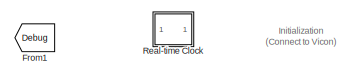
[diagram: root canvas - part 1/2, top center region]
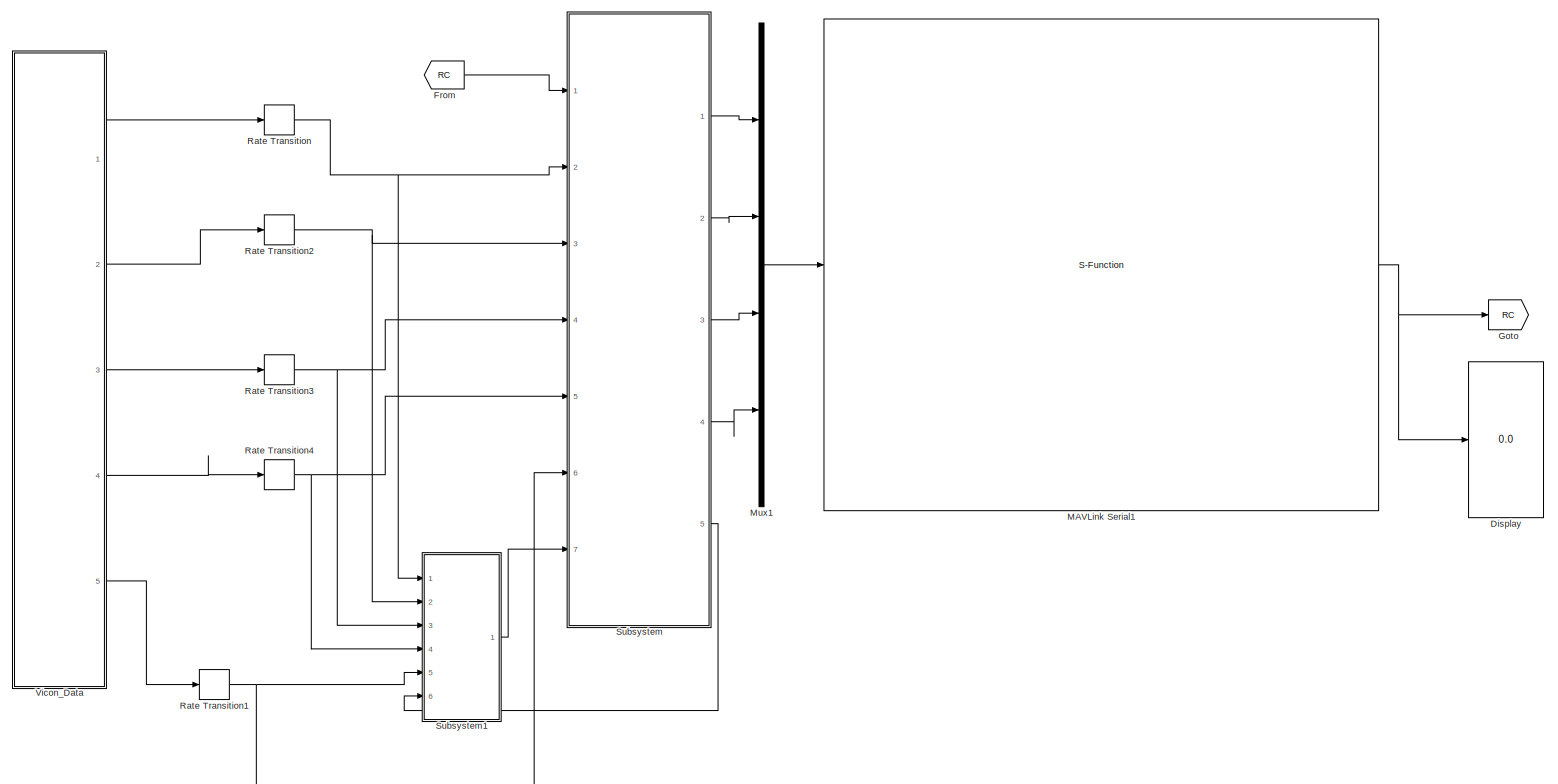
[diagram: root canvas - part 2/2, most of the canvas]
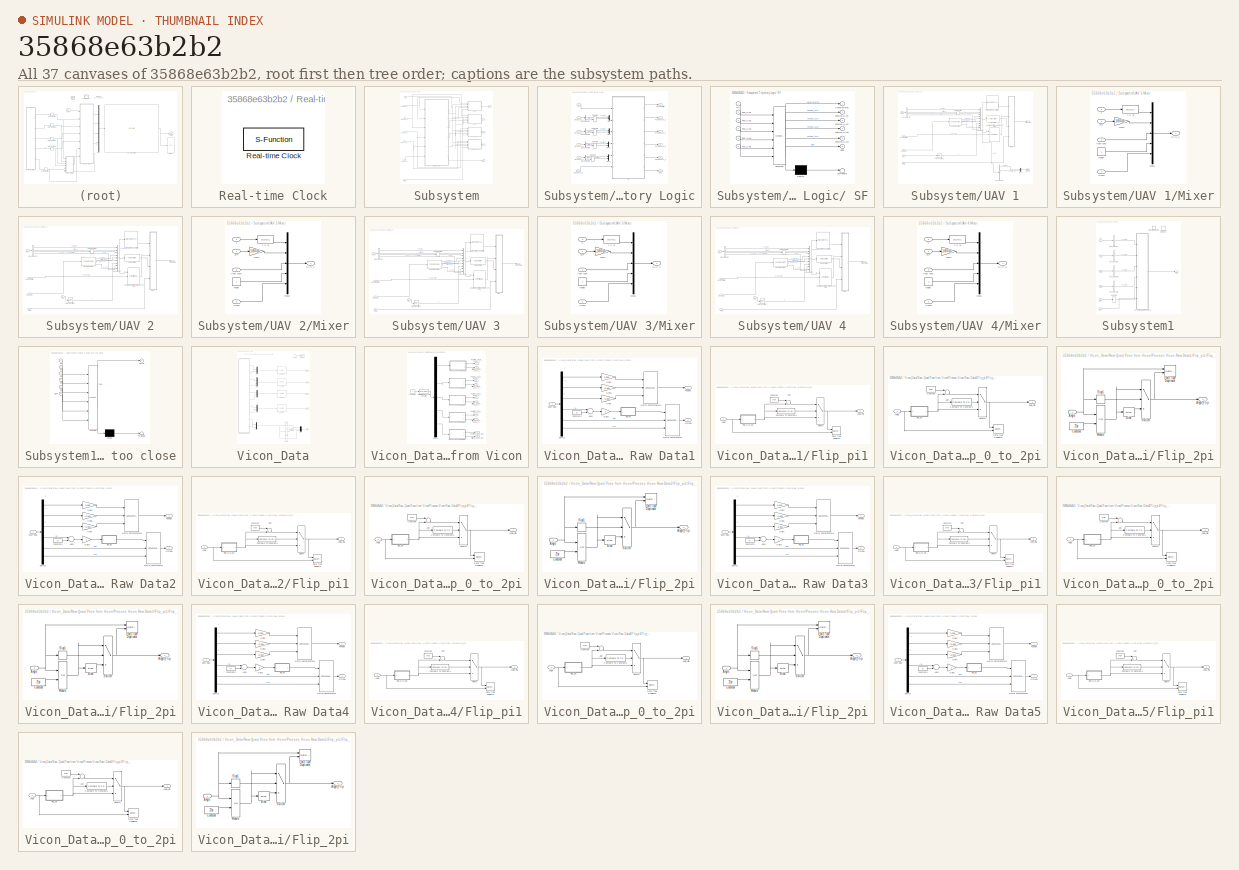
[diagram: thumbnail index - all 37 canvases of the model, root first then tree order]
MODEL slx_35868e63b2b2
KIND model
CONFIG InitFcn = sample_time=0.005;%0.004;%0.0025;%0.02;\nsample_time_Vicon = 0.005;\nDeltaT = 0.02;\ng = 9.81;\nH0 = g%0.3165;\nKl = 1;\n\nQ6_mass = 0.8;\n\nQ6_Omega_r = 1.2; %for horizon ref\nQ6_Zeta_r = 0.707; %for horizon ref\nQ6_Omega_r_h = 2;%for vertical ref\nQ6_Zeta_r_h = 0.7; %for vertical ref\n\n\nQ6_Omega = 1.5; %for horizon control\nQ6_Zeta = 0.507; %for horizon control\nQ6_Omega_h= 2; %for vertical control\nQ6_Zeta_h =...<+538ch>
BLOCK [Display] Display
  Decimation = 1
  Lockdown = off
  Ports = [1]
BLOCK [From] From
  GotoTag = RC
  TagVisibility = global
BLOCK [From] From1
  GotoTag = Debug
BLOCK [Goto] Goto
  GotoTag = RC
  TagVisibility = global
BLOCK [S-Function] MAVLink Serial1
  EnableBusSupport = off
  FunctionName = MAVLink_Interface_Airshow
  Parameters = COM_Port,Baud_Rate,MSG_INPUT,MSG_OUTPUT
  Ports = [1, 1]
BLOCK [Mux] Mux1
  DisplayOption = bar
  Ports = [4, 1]
BLOCK [RateTransition] Rate Transition
  OutPortSampleTime = 0.02
BLOCK [RateTransition] Rate Transition1
  OutPortSampleTime = 0.02
BLOCK [RateTransition] Rate Transition2
  OutPortSampleTime = 0.02
BLOCK [RateTransition] Rate Transition3
  OutPortSampleTime = 0.02
BLOCK [RateTransition] Rate Transition4
  OutPortSampleTime = 0.02
BLOCK [SubSystem] Real-time Clock
  FunctionWithSeparateData = off
  MaskHideContents = off
  MinAlgLoopOccurrences = off
  Opaque = off
  Ports = []
  PropExecContextOutsideSubsystem = off
  RTWSystemCode = Auto
  RequestExecContextInheritance = off
  ShowPortLabels = none
BLOCK [S-Function] Real-time Clock/Real-time Clock
  EnableBusSupport = off
  FunctionName = rtclock
  Parameters = sample_time, tolerance
  Ports = []
BLOCK [SubSystem] Subsystem
  FunctionWithSeparateData = off
  MaskHideContents = off
  MinAlgLoopOccurrences = off
  Opaque = off
  Ports = [7, 5]
  PropExecContextOutsideSubsystem = off
  RTWSystemCode = Auto
  RequestExecContextInheritance = off
BLOCK [Outport] Subsystem/Light
  IconDisplay = Port number
  Port = 5
BLOCK [Inport] Subsystem/PWM
  IconDisplay = Port number
  Port = 7
BLOCK [Inport] Subsystem/RC
  IconDisplay = Port number
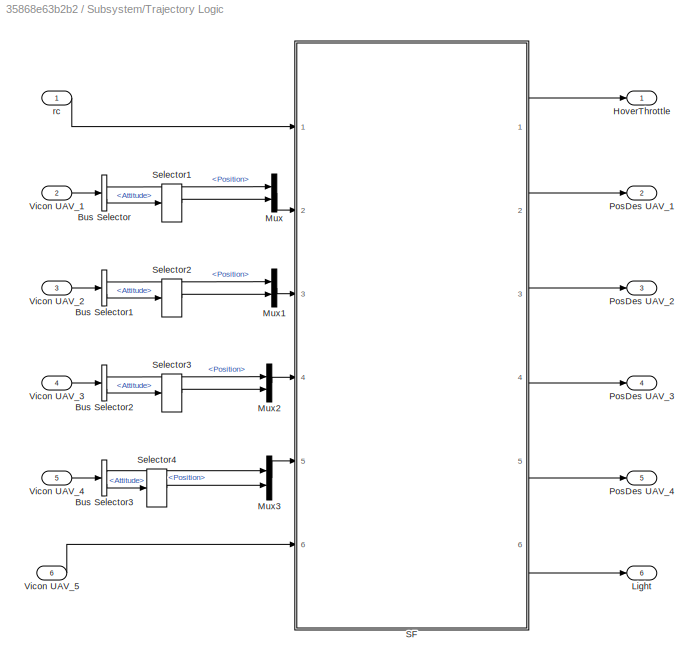
BLOCK [SubSystem] Subsystem/Trajectory Logic
  FunctionWithSeparateData = off
  MaskHideContents = off
  MinAlgLoopOccurrences = off
  Opaque = off
  Ports = [6, 6]
  PropExecContextOutsideSubsystem = off
  RTWSystemCode = Auto
  RequestExecContextInheritance = off
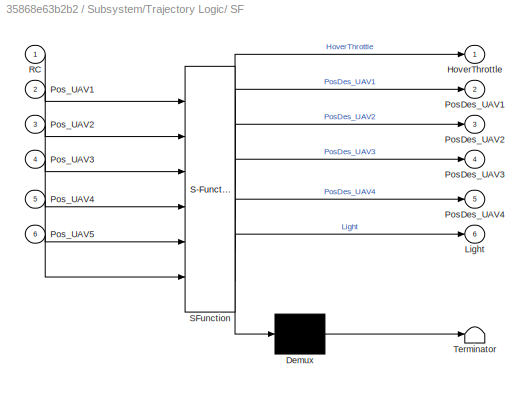
BLOCK [SubSystem] Subsystem/Trajectory Logic/ SF
  ErrorFcn = Stateflow.Translate.translate
  FunctionWithSeparateData = off
  MaskHideContents = off
  MinAlgLoopOccurrences = off
  Opaque = off
  PermitHierarchicalResolution = ExplicitOnly
  Ports = [6, 6]
  PropExecContextOutsideSubsystem = off
  RTWSystemCode = Auto
  RequestExecContextInheritance = off
  SFBlockType = Chart
  TreatAsAtomicUnit = on
BLOCK [Demux] Subsystem/Trajectory Logic/ SF/ Demux 
  Outputs = 1
  Ports = [1, 1]
BLOCK [S-Function] Subsystem/Trajectory Logic/ SF/ SFunction 
  EnableBusSupport = on
  FunctionName = sf_sfun
  Parameters = Circle_R,DeltaT,H0,Kl,MAX_Height,PI,omega_circle,omega_h
  PortCounts = [6 7]
  Ports = [6, 7]
  Tag = Stateflow S-Function Commando07012014 7
BLOCK [Terminator] Subsystem/Trajectory Logic/ SF/ Terminator 
BLOCK [Outport] Subsystem/Trajectory Logic/ SF/HoverThrottle
  IconDisplay = Port number
BLOCK [Outport] Subsystem/Trajectory Logic/ SF/Light
  IconDisplay = Port number
  Port = 6
BLOCK [Outport] Subsystem/Trajectory Logic/ SF/PosDes_UAV1
  IconDisplay = Port number
  Port = 2
BLOCK [Outport] Subsystem/Trajectory Logic/ SF/PosDes_UAV2
  IconDisplay = Port number
  Port = 3
BLOCK [Outport] Subsystem/Trajectory Logic/ SF/PosDes_UAV3
  IconDisplay = Port number
  Port = 4
BLOCK [Outport] Subsystem/Trajectory Logic/ SF/PosDes_UAV4
  IconDisplay = Port number
  Port = 5
BLOCK [Inport] Subsystem/Trajectory Logic/ SF/Pos_UAV1
  IconDisplay = Port number
  Port = 2
BLOCK [Inport] Subsystem/Trajectory Logic/ SF/Pos_UAV2
  IconDisplay = Port number
  Port = 3
BLOCK [Inport] Subsystem/Trajectory Logic/ SF/Pos_UAV3
  IconDisplay = Port number
  Port = 4
BLOCK [Inport] Subsystem/Trajectory Logic/ SF/Pos_UAV4
  IconDisplay = Port number
  Port = 5
BLOCK [Inport] Subsystem/Trajectory Logic/ SF/Pos_UAV5
  IconDisplay = Port number
  Port = 6
BLOCK [Inport] Subsystem/Trajectory Logic/ SF/RC
  IconDisplay = Port number
BLOCK [BusSelector] Subsystem/Trajectory Logic/Bus Selector
  OutputSignals = Position,Attitude
  Ports = [1, 2]
BLOCK [BusSelector] Subsystem/Trajectory Logic/Bus Selector1
  OutputSignals = Position,Attitude
  Ports = [1, 2]
BLOCK [BusSelector] Subsystem/Trajectory Logic/Bus Selector2
  OutputSignals = Position,Attitude
  Ports = [1, 2]
BLOCK [BusSelector] Subsystem/Trajectory Logic/Bus Selector3
  OutputSignals = Position,Attitude
  Ports = [1, 2]
BLOCK [Outport] Subsystem/Trajectory Logic/HoverThrottle
  IconDisplay = Port number
BLOCK [Outport] Subsystem/Trajectory Logic/Light
  IconDisplay = Port number
  Port = 6
BLOCK [Mux] Subsystem/Trajectory Logic/Mux
  DisplayOption = bar
  Inputs = 2
  Ports = [2, 1]
BLOCK [Mux] Subsystem/Trajectory Logic/Mux1
  DisplayOption = bar
  Inputs = 2
  Ports = [2, 1]
BLOCK [Mux] Subsystem/Trajectory Logic/Mux2
  DisplayOption = bar
  Inputs = 2
  Ports = [2, 1]
BLOCK [Mux] Subsystem/Trajectory Logic/Mux3
  DisplayOption = bar
  Inputs = 2
  Ports = [2, 1]
BLOCK [Outport] Subsystem/Trajectory Logic/PosDes UAV_1
  IconDisplay = Port number
  Port = 2
BLOCK [Outport] Subsystem/Trajectory Logic/PosDes UAV_2
  IconDisplay = Port number
  Port = 3
BLOCK [Outport] Subsystem/Trajectory Logic/PosDes UAV_3
  IconDisplay = Port number
  Port = 4
BLOCK [Outport] Subsystem/Trajectory Logic/PosDes UAV_4
  IconDisplay = Port number
  Port = 5
BLOCK [Selector] Subsystem/Trajectory Logic/Selector1
  IndexOptions = Index vector (dialog)
  Indices = [3]
  InputPortWidth = 3
  OutputSizes = 1
  Ports = [1, 1]
BLOCK [Selector] Subsystem/Trajectory Logic/Selector2
  IndexOptions = Index vector (dialog)
  Indices = [3]
  InputPortWidth = 3
  OutputSizes = 1
  Ports = [1, 1]
BLOCK [Selector] Subsystem/Trajectory Logic/Selector3
  IndexOptions = Index vector (dialog)
  Indices = [3]
  InputPortWidth = 3
  OutputSizes = 1
  Ports = [1, 1]
BLOCK [Selector] Subsystem/Trajectory Logic/Selector4
  IndexOptions = Index vector (dialog)
  Indices = [3]
  InputPortWidth = 3
  OutputSizes = 1
  Ports = [1, 1]
BLOCK [Inport] Subsystem/Trajectory Logic/Vicon UAV_1
  IconDisplay = Port number
  Port = 2
BLOCK [Inport] Subsystem/Trajectory Logic/Vicon UAV_2
  IconDisplay = Port number
  Port = 3
BLOCK [Inport] Subsystem/Trajectory Logic/Vicon UAV_3
  IconDisplay = Port number
  Port = 4
BLOCK [Inport] Subsystem/Trajectory Logic/Vicon UAV_4
  IconDisplay = Port number
  Port = 5
BLOCK [Inport] Subsystem/Trajectory Logic/Vicon UAV_5
  IconDisplay = Port number
  Port = 6
BLOCK [Inport] Subsystem/Trajectory Logic/rc
  IconDisplay = Port number
BLOCK [SubSystem] Subsystem/UAV 1
  FunctionWithSeparateData = off
  MaskHideContents = off
  MinAlgLoopOccurrences = off
  Opaque = off
  Ports = [5, 1]
  PropExecContextOutsideSubsystem = off
  RTWSystemCode = Auto
  RequestExecContextInheritance = off
BLOCK [Reference] Subsystem/UAV 1/Axi Vertical Controller AxiMotor + APC Prop  REF=X330_Control/Axi Vertical Controller
AxiMotor + APC Prop
  Omega_h = Q6_Omega_h
  PID_I_h = 1
  Ports = [3, 1]
  SourceBlock = X330_Control/Axi Vertical Controller\nAxiMotor + APC Prop
  Zeta_h = Q6_Zeta_h
  mass = Q6_mass
BLOCK [BusCreator] Subsystem/UAV 1/Bus Creator
  DisplayOption = bar
  Inputs = 9
  Ports = [9, 1]
BLOCK [BusSelector] Subsystem/UAV 1/Bus Selector
  OutputSignals = Position,Attitude,Velocity,Acceleration
  Ports = [1, 4]
BLOCK [BusSelector] Subsystem/UAV 1/Bus Selector2
  OutputSignals = Position,Attitude,velocity,position des,attitude des,velocity des,rc,Acc des
  Ports = [1, 8]
BLOCK [Reference] Subsystem/UAV 1/Horizontal Pos controller  REF=X330_Control/Horizontal Pos controller
  Max_RP = 60
  Omega = Q6_Omega
  PID_i = 0.5
  Ports = [1, 1]
  SourceBlock = X330_Control/Horizontal Pos controller
  Zeta = Q6_Zeta
BLOCK [Inport] Subsystem/UAV 1/Hover Throttle
  IconDisplay = Port number
  Port = 3
BLOCK [SubSystem] Subsystem/UAV 1/Mixer
  FunctionWithSeparateData = off
  MaskHideContents = off
  MinAlgLoopOccurrences = off
  Opaque = off
  Ports = [4, 1]
  PropExecContextOutsideSubsystem = off
  RTWSystemCode = Auto
  RequestExecContextInheritance = off
BLOCK [Gain] Subsystem/UAV 1/Mixer/Gain
  Gain = 180/pi
  OutDataTypeStr = Inherit: Inherit via internal rule
  ParamDataTypeStr = Inherit: Inherit via internal rule
  SaturateOnIntegerOverflow = off
BLOCK [Constant] Subsystem/UAV 1/Mixer/Mode
  SampleTime = 0.02
BLOCK [Mux] Subsystem/UAV 1/Mixer/Mux1
  DisplayOption = bar
  Inputs = 5
  Ports = [5, 1]
BLOCK [Inport] Subsystem/UAV 1/Mixer/PWM
  IconDisplay = Port number
  Port = 4
BLOCK [Inport] Subsystem/UAV 1/Mixer/RP
  IconDisplay = Port number
BLOCK [Inport] Subsystem/UAV 1/Mixer/T
  IconDisplay = Port number
  Port = 2
BLOCK [Outport] Subsystem/UAV 1/Mixer/UAV_1
  IconDisplay = Port number
BLOCK [Inport] Subsystem/UAV 1/Mixer/Yaw rate
  IconDisplay = Port number
  Port = 3
BLOCK [Fcn] Subsystem/UAV 1/Mixer/[-1, 1]
  Expr = u(1)*2-1
BLOCK [Mux] Subsystem/UAV 1/Mux3
  DisplayOption = bar
  Inputs = 2
  Ports = [2, 1]
BLOCK [Inport] Subsystem/UAV 1/PWM
  IconDisplay = Port number
  Port = 5
BLOCK [Inport] Subsystem/UAV 1/Pos Com
  IconDisplay = Port number
  Port = 4
BLOCK [Reference] Subsystem/UAV 1/PosRefSystem  REF=X330_Control/PosRefSystem
  Acc_Max = Q6_acc_max
  Acc_h_Max = Q6_acc_max_h
  Omega_h_r = Q6_Omega_r_h
  Omega_r = Q6_Omega_r
  Ports = [1, 4]
  SourceBlock = X330_Control/PosRefSystem
  Zeta_h_r = Q6_Zeta_r_h
  Zeta_r = Q6_Zeta_r
BLOCK [Inport] Subsystem/UAV 1/RC
  IconDisplay = Port number
  Port = 2
BLOCK [RateTransition] Subsystem/UAV 1/Rate Transition
  OutPortSampleTime = 0.02
BLOCK [RateTransition] Subsystem/UAV 1/Rate Transition1
  OutPortSampleTime = 0.02
BLOCK [Outport] Subsystem/UAV 1/TRPY Cmd
  IconDisplay = Port number
BLOCK [Scope] Subsystem/UAV 1/UAV_1
  DataFormat = StructureWithTime
  Floating = off
  LimitDataPoints = off
  NumInputPorts = 1
  Ports = [1]
  SampleTime = 0
  ShowLegends = off
  TimeRange = 10
  YMax = 2
  YMin = -2.25
BLOCK [Inport] Subsystem/UAV 1/Vicon
  IconDisplay = Port number
BLOCK [Reference] Subsystem/UAV 1/Yaw Controller  REF=X330_Control/Yaw Controller
  Ports = [1, 1]
  SourceBlock = X330_Control/Yaw Controller
  SourceType = SubSystem
BLOCK [SubSystem] Subsystem/UAV 2
  FunctionWithSeparateData = off
  MaskHideContents = off
  MinAlgLoopOccurrences = off
  Opaque = off
  Ports = [5, 1]
  PropExecContextOutsideSubsystem = off
  RTWSystemCode = Auto
  RequestExecContextInheritance = off
BLOCK [Reference] Subsystem/UAV 2/Axi Vertical Controller AxiMotor + APC Prop  REF=X330_Control/Axi Vertical Controller
AxiMotor + APC Prop
  Omega_h = Q6_Omega_h
  PID_I_h = 1
  Ports = [3, 1]
  SourceBlock = X330_Control/Axi Vertical Controller\nAxiMotor + APC Prop
  Zeta_h = Q6_Zeta_h
  mass = Q6_mass
BLOCK [BusCreator] Subsystem/UAV 2/Bus Creator
  DisplayOption = bar
  Inputs = 9
  Ports = [9, 1]
BLOCK [BusSelector] Subsystem/UAV 2/Bus Selector
  OutputSignals = Position,Attitude,Velocity,Acceleration
  Ports = [1, 4]
BLOCK [Reference] Subsystem/UAV 2/Horizontal Pos controller  REF=X330_Control/Horizontal Pos controller
  Max_RP = 60
  Omega = Q6_Omega
  PID_i = 0.5
  Ports = [1, 1]
  SourceBlock = X330_Control/Horizontal Pos controller
  Zeta = Q6_Zeta
BLOCK [Inport] Subsystem/UAV 2/Hover Throttle
  IconDisplay = Port number
  Port = 3
BLOCK [SubSystem] Subsystem/UAV 2/Mixer
  FunctionWithSeparateData = off
  MaskHideContents = off
  MinAlgLoopOccurrences = off
  Opaque = off
  Ports = [4, 1]
  PropExecContextOutsideSubsystem = off
  RTWSystemCode = Auto
  RequestExecContextInheritance = off
BLOCK [Gain] Subsystem/UAV 2/Mixer/Gain
  Gain = 180/pi
  OutDataTypeStr = Inherit: Inherit via internal rule
  ParamDataTypeStr = Inherit: Inherit via internal rule
  SaturateOnIntegerOverflow = off
BLOCK [Constant] Subsystem/UAV 2/Mixer/Mode
  SampleTime = 0.02
BLOCK [Mux] Subsystem/UAV 2/Mixer/Mux1
  DisplayOption = bar
  Inputs = 5
  Ports = [5, 1]
BLOCK [Inport] Subsystem/UAV 2/Mixer/PWM
  IconDisplay = Port number
  Port = 4
BLOCK [Inport] Subsystem/UAV 2/Mixer/RP
  IconDisplay = Port number
BLOCK [Inport] Subsystem/UAV 2/Mixer/T
  IconDisplay = Port number
  Port = 2
BLOCK [Outport] Subsystem/UAV 2/Mixer/UAV_1
  IconDisplay = Port number
BLOCK [Inport] Subsystem/UAV 2/Mixer/Yaw rate
  IconDisplay = Port number
  Port = 3
BLOCK [Fcn] Subsystem/UAV 2/Mixer/[-1, 1]
  Expr = u(1)*2-1
BLOCK [Inport] Subsystem/UAV 2/PWM
  IconDisplay = Port number
  Port = 5
BLOCK [Inport] Subsystem/UAV 2/Pos Com
  IconDisplay = Port number
  Port = 4
BLOCK [Reference] Subsystem/UAV 2/PosRefSystem  REF=X330_Control/PosRefSystem
  Acc_Max = Q6_acc_max
  Acc_h_Max = Q6_acc_max_h
  Omega_h_r = Q6_Omega_r_h
  Omega_r = Q6_Omega_r
  Ports = [1, 4]
  SourceBlock = X330_Control/PosRefSystem
  Zeta_h_r = Q6_Zeta_r_h
  Zeta_r = Q6_Zeta_r
BLOCK [Inport] Subsystem/UAV 2/RC
  IconDisplay = Port number
  Port = 2
BLOCK [RateTransition] Subsystem/UAV 2/Rate Transition
  OutPortSampleTime = 0.02
BLOCK [RateTransition] Subsystem/UAV 2/Rate Transition1
  OutPortSampleTime = 0.02
BLOCK [Outport] Subsystem/UAV 2/TRPY Cmd
  IconDisplay = Port number
BLOCK [Inport] Subsystem/UAV 2/Vicon
  IconDisplay = Port number
BLOCK [Reference] Subsystem/UAV 2/Yaw Controller  REF=X330_Control/Yaw Controller
  Ports = [1, 1]
  SourceBlock = X330_Control/Yaw Controller
  SourceType = SubSystem
BLOCK [SubSystem] Subsystem/UAV 3
  FunctionWithSeparateData = off
  MaskHideContents = off
  MinAlgLoopOccurrences = off
  Opaque = off
  Ports = [5, 1]
  PropExecContextOutsideSubsystem = off
  RTWSystemCode = Auto
  RequestExecContextInheritance = off
BLOCK [Reference] Subsystem/UAV 3/Axi Vertical Controller AxiMotor + APC Prop  REF=X330_Control/Axi Vertical Controller
AxiMotor + APC Prop
  Omega_h = Q6_Omega_h
  PID_I_h = 1
  Ports = [3, 1]
  SourceBlock = X330_Control/Axi Vertical Controller\nAxiMotor + APC Prop
  Zeta_h = Q6_Zeta_h
  mass = Q6_mass
BLOCK [BusCreator] Subsystem/UAV 3/Bus Creator
  DisplayOption = bar
  Inputs = 9
  Ports = [9, 1]
BLOCK [BusSelector] Subsystem/UAV 3/Bus Selector
  OutputSignals = Position,Attitude,Velocity,Acceleration
  Ports = [1, 4]
BLOCK [Reference] Subsystem/UAV 3/Horizontal Pos controller  REF=X330_Control/Horizontal Pos controller
  Max_RP = 60
  Omega = Q6_Omega
  PID_i = 0.5
  Ports = [1, 1]
  SourceBlock = X330_Control/Horizontal Pos controller
  Zeta = Q6_Zeta
BLOCK [Inport] Subsystem/UAV 3/Hover Throttle
  IconDisplay = Port number
  Port = 3
BLOCK [SubSystem] Subsystem/UAV 3/Mixer
  FunctionWithSeparateData = off
  MaskHideContents = off
  MinAlgLoopOccurrences = off
  Opaque = off
  Ports = [4, 1]
  PropExecContextOutsideSubsystem = off
  RTWSystemCode = Auto
  RequestExecContextInheritance = off
BLOCK [Gain] Subsystem/UAV 3/Mixer/Gain
  Gain = 180/pi
  OutDataTypeStr = Inherit: Inherit via internal rule
  ParamDataTypeStr = Inherit: Inherit via internal rule
  SaturateOnIntegerOverflow = off
BLOCK [Constant] Subsystem/UAV 3/Mixer/Mode
  SampleTime = 0.02
BLOCK [Mux] Subsystem/UAV 3/Mixer/Mux1
  DisplayOption = bar
  Inputs = 5
  Ports = [5, 1]
BLOCK [Inport] Subsystem/UAV 3/Mixer/PWM
  IconDisplay = Port number
  Port = 4
BLOCK [Inport] Subsystem/UAV 3/Mixer/RP
  IconDisplay = Port number
BLOCK [Inport] Subsystem/UAV 3/Mixer/T
  IconDisplay = Port number
  Port = 2
BLOCK [Outport] Subsystem/UAV 3/Mixer/UAV_1
  IconDisplay = Port number
BLOCK [Inport] Subsystem/UAV 3/Mixer/Yaw rate
  IconDisplay = Port number
  Port = 3
BLOCK [Fcn] Subsystem/UAV 3/Mixer/[-1, 1]
  Expr = u(1)*2-1
BLOCK [Inport] Subsystem/UAV 3/PWM
  IconDisplay = Port number
  Port = 5
BLOCK [Inport] Subsystem/UAV 3/Pos Com
  IconDisplay = Port number
  Port = 4
BLOCK [Reference] Subsystem/UAV 3/PosRefSystem  REF=X330_Control/PosRefSystem
  Acc_Max = Q6_acc_max
  Acc_h_Max = Q6_acc_max_h
  Omega_h_r = Q6_Omega_r_h
  Omega_r = Q6_Omega_r
  Ports = [1, 4]
  SourceBlock = X330_Control/PosRefSystem
  Zeta_h_r = Q6_Zeta_r_h
  Zeta_r = Q6_Zeta_r
BLOCK [Inport] Subsystem/UAV 3/RC
  IconDisplay = Port number
  Port = 2
BLOCK [RateTransition] Subsystem/UAV 3/Rate Transition
  OutPortSampleTime = 0.02
BLOCK [RateTransition] Subsystem/UAV 3/Rate Transition1
  OutPortSampleTime = 0.02
BLOCK [Outport] Subsystem/UAV 3/TRPY Cmd
  IconDisplay = Port number
BLOCK [Inport] Subsystem/UAV 3/Vicon
  IconDisplay = Port number
BLOCK [Reference] Subsystem/UAV 3/Yaw Controller  REF=X330_Control/Yaw Controller
  Ports = [1, 1]
  SourceBlock = X330_Control/Yaw Controller
  SourceType = SubSystem
BLOCK [SubSystem] Subsystem/UAV 4
  FunctionWithSeparateData = off
  MaskHideContents = off
  MinAlgLoopOccurrences = off
  Opaque = off
  Ports = [5, 1]
  PropExecContextOutsideSubsystem = off
  RTWSystemCode = Auto
  RequestExecContextInheritance = off
BLOCK [Reference] Subsystem/UAV 4/Axi Vertical Controller AxiMotor + APC Prop  REF=X330_Control/Axi Vertical Controller
AxiMotor + APC Prop
  Omega_h = Q6_Omega_h
  PID_I_h = 1
  Ports = [3, 1]
  SourceBlock = X330_Control/Axi Vertical Controller\nAxiMotor + APC Prop
  Zeta_h = Q6_Zeta_h
  mass = Q6_mass
BLOCK [BusCreator] Subsystem/UAV 4/Bus Creator
  DisplayOption = bar
  Inputs = 9
  Ports = [9, 1]
BLOCK [BusSelector] Subsystem/UAV 4/Bus Selector
  OutputSignals = Position,Attitude,Velocity,Acceleration
  Ports = [1, 4]
BLOCK [Reference] Subsystem/UAV 4/Horizontal Pos controller  REF=X330_Control/Horizontal Pos controller
  Max_RP = 60
  Omega = Q6_Omega
  PID_i = 0.5
  Ports = [1, 1]
  SourceBlock = X330_Control/Horizontal Pos controller
  Zeta = Q6_Zeta
BLOCK [Inport] Subsystem/UAV 4/Hover Throttle
  IconDisplay = Port number
  Port = 3
BLOCK [SubSystem] Subsystem/UAV 4/Mixer
  FunctionWithSeparateData = off
  MaskHideContents = off
  MinAlgLoopOccurrences = off
  Opaque = off
  Ports = [4, 1]
  PropExecContextOutsideSubsystem = off
  RTWSystemCode = Auto
  RequestExecContextInheritance = off
BLOCK [Gain] Subsystem/UAV 4/Mixer/Gain
  Gain = 180/pi
  OutDataTypeStr = Inherit: Inherit via internal rule
  ParamDataTypeStr = Inherit: Inherit via internal rule
  SaturateOnIntegerOverflow = off
BLOCK [Constant] Subsystem/UAV 4/Mixer/Mode
  SampleTime = 0.02
BLOCK [Mux] Subsystem/UAV 4/Mixer/Mux1
  DisplayOption = bar
  Inputs = 5
  Ports = [5, 1]
BLOCK [Inport] Subsystem/UAV 4/Mixer/PWM
  IconDisplay = Port number
  Port = 4
BLOCK [Inport] Subsystem/UAV 4/Mixer/RP
  IconDisplay = Port number
BLOCK [Inport] Subsystem/UAV 4/Mixer/T
  IconDisplay = Port number
  Port = 2
BLOCK [Outport] Subsystem/UAV 4/Mixer/UAV_1
  IconDisplay = Port number
BLOCK [Inport] Subsystem/UAV 4/Mixer/Yaw rate
  IconDisplay = Port number
  Port = 3
BLOCK [Fcn] Subsystem/UAV 4/Mixer/[-1, 1]
  Expr = u(1)*2-1
BLOCK [Inport] Subsystem/UAV 4/PWM
  IconDisplay = Port number
  Port = 5
BLOCK [Inport] Subsystem/UAV 4/Pos Com
  IconDisplay = Port number
  Port = 4
BLOCK [Reference] Subsystem/UAV 4/PosRefSystem  REF=X330_Control/PosRefSystem
  Acc_Max = Q6_acc_max
  Acc_h_Max = Q6_acc_max_h
  Omega_h_r = Q6_Omega_r_h
  Omega_r = Q6_Omega_r
  Ports = [1, 4]
  SourceBlock = X330_Control/PosRefSystem
  Zeta_h_r = Q6_Zeta_r_h
  Zeta_r = Q6_Zeta_r
BLOCK [Inport] Subsystem/UAV 4/RC
  IconDisplay = Port number
  Port = 2
BLOCK [RateTransition] Subsystem/UAV 4/Rate Transition
  OutPortSampleTime = 0.02
BLOCK [RateTransition] Subsystem/UAV 4/Rate Transition1
  OutPortSampleTime = 0.02
BLOCK [Outport] Subsystem/UAV 4/TRPY Cmd
  IconDisplay = Port number
BLOCK [Inport] Subsystem/UAV 4/Vicon
  IconDisplay = Port number
BLOCK [Reference] Subsystem/UAV 4/Yaw Controller  REF=X330_Control/Yaw Controller
  Ports = [1, 1]
  SourceBlock = X330_Control/Yaw Controller
  SourceType = SubSystem
BLOCK [Outport] Subsystem/UAV_1
  IconDisplay = Port number
BLOCK [Outport] Subsystem/UAV_2
  IconDisplay = Port number
  Port = 2
BLOCK [Outport] Subsystem/UAV_3
  IconDisplay = Port number
  Port = 3
BLOCK [Outport] Subsystem/UAV_4
  IconDisplay = Port number
  Port = 4
BLOCK [Inport] Subsystem/Vicon UAV_1
  IconDisplay = Port number
  Port = 2
BLOCK [Inport] Subsystem/Vicon UAV_2
  IconDisplay = Port number
  Port = 3
BLOCK [Inport] Subsystem/Vicon UAV_3
  IconDisplay = Port number
  Port = 4
BLOCK [Inport] Subsystem/Vicon UAV_4
  IconDisplay = Port number
  Port = 5
BLOCK [Inport] Subsystem/Vicon UAV_5
  IconDisplay = Port number
  Port = 6
BLOCK [SubSystem] Subsystem1
  FunctionWithSeparateData = off
  MaskHideContents = off
  MinAlgLoopOccurrences = off
  Opaque = off
  Ports = [6, 1]
  PropExecContextOutsideSubsystem = off
  RTWSystemCode = Auto
  RequestExecContextInheritance = off
BLOCK [BusSelector] Subsystem1/Bus Selector
  OutputSignals = Position
  Ports = [1, 1]
BLOCK [BusSelector] Subsystem1/Bus Selector1
  OutputSignals = Position
  Ports = [1, 1]
BLOCK [BusSelector] Subsystem1/Bus Selector2
  OutputSignals = Position
  Ports = [1, 1]
BLOCK [BusSelector] Subsystem1/Bus Selector3
  OutputSignals = Position
  Ports = [1, 1]
BLOCK [DataStoreMemory] Subsystem1/Data Store Memory
  DataStoreName = QD
  OutDataTypeStr = double
  SignalType = real
BLOCK [DataStoreMemory] Subsystem1/Data Store Memory1
  DataStoreName = Counter
  OutDataTypeStr = double
  SignalType = real
BLOCK [Inport] Subsystem1/Light
  IconDisplay = Port number
  Port = 6
BLOCK [Outport] Subsystem1/PWM
  IconDisplay = Port number
BLOCK [Selector] Subsystem1/Selector1
  IndexOptions = Index vector (dialog)
  Indices = [1 2 3]
  InputPortWidth = 4
  OutputSizes = 1
  Ports = [1, 1]
BLOCK [Inport] Subsystem1/X1
  IconDisplay = Port number
BLOCK [Inport] Subsystem1/X2
  IconDisplay = Port number
  Port = 2
BLOCK [Inport] Subsystem1/X3
  IconDisplay = Port number
  Port = 3
BLOCK [Inport] Subsystem1/X4
  IconDisplay = Port number
  Port = 4
BLOCK [SubSystem] Subsystem1/check if quad are too close
  ErrorFcn = Stateflow.Translate.translate
  FunctionWithSeparateData = off
  MaskHideContents = off
  MinAlgLoopOccurrences = off
  Opaque = off
  PermitHierarchicalResolution = ExplicitOnly
  Ports = [6, 1]
  PropExecContextOutsideSubsystem = off
  RTWSystemCode = Auto
  RequestExecContextInheritance = off
  SFBlockType = MATLAB Function
  TreatAsAtomicUnit = on
BLOCK [Demux] Subsystem1/check if quad are too close/ Demux 
  Outputs = 1
  Ports = [1, 1]
BLOCK [S-Function] Subsystem1/check if quad are too close/ SFunction 
  EnableBusSupport = on
  FunctionName = sf_sfun
  PortCounts = [6 2]
  Ports = [6, 2]
  Tag = Stateflow S-Function Commando07012014 1
BLOCK [Terminator] Subsystem1/check if quad are too close/ Terminator 
BLOCK [Inport] Subsystem1/check if quad are too close/Light
  IconDisplay = Port number
  Port = 6
BLOCK [Outport] Subsystem1/check if quad are too close/PWM1
  IconDisplay = Port number
BLOCK [Inport] Subsystem1/check if quad are too close/Q1
  IconDisplay = Port number
BLOCK [Inport] Subsystem1/check if quad are too close/Q2
  IconDisplay = Port number
  Port = 2
BLOCK [Inport] Subsystem1/check if quad are too close/Q3
  IconDisplay = Port number
  Port = 3
BLOCK [Inport] Subsystem1/check if quad are too close/Q4
  IconDisplay = Port number
  Port = 4
BLOCK [Inport] Subsystem1/check if quad are too close/Q5
  IconDisplay = Port number
  Port = 5
BLOCK [Inport] Subsystem1/test
  IconDisplay = Port number
  Port = 5
BLOCK [SubSystem] Vicon_Data
  FunctionWithSeparateData = off
  MaskHideContents = off
  MinAlgLoopOccurrences = off
  Opaque = off
  Ports = [0, 5]
  PropExecContextOutsideSubsystem = off
  RTWSystemCode = Auto
  RequestExecContextInheritance = off
BLOCK [Constant] Vicon_Data/Constant
  SampleTime = 5
BLOCK [Mux] Vicon_Data/Mux1
  DisplayOption = bar
  Inputs = 2
  Ports = [2, 1]
BLOCK [Mux] Vicon_Data/Mux2
  DisplayOption = bar
  Inputs = 2
  Ports = [2, 1]
BLOCK [Mux] Vicon_Data/Mux3
  DisplayOption = bar
  Inputs = 2
  Ports = [2, 1]
BLOCK [Mux] Vicon_Data/Mux4
  DisplayOption = bar
  Inputs = 2
  Ports = [2, 1]
BLOCK [Mux] Vicon_Data/Mux5
  DisplayOption = bar
  Inputs = 2
  Ports = [2, 1]
BLOCK [Mux] Vicon_Data/Mux6
  DisplayOption = bar
  Inputs = 3
  Ports = [3, 1]
BLOCK [SubSystem] Vicon_Data/Raw Quad Pose from Vicon
  FunctionWithSeparateData = off
  MaskHideContents = off
  MinAlgLoopOccurrences = off
  Opaque = off
  Ports = [0, 10]
  PropExecContextOutsideSubsystem = off
  RTWSystemCode = Auto
  RequestExecContextInheritance = off
BLOCK [Outport] Vicon_Data/Raw Quad Pose from Vicon/Attitude_Vicon_X330_1
  IconDisplay = Port number
  Port = 2
BLOCK [Outport] Vicon_Data/Raw Quad Pose from Vicon/Attitude_Vicon_X330_2
  IconDisplay = Port number
  Port = 4
BLOCK [Outport] Vicon_Data/Raw Quad Pose from Vicon/Attitude_Vicon_X330_3
  IconDisplay = Port number
  Port = 6
BLOCK [Outport] Vicon_Data/Raw Quad Pose from Vicon/Attitude_Vicon_X330_4
  IconDisplay = Port number
  Port = 8
BLOCK [Outport] Vicon_Data/Raw Quad Pose from Vicon/Attitude_Vicon_test
  IconDisplay = Port number
  Port = 10
BLOCK [Constant] Vicon_Data/Raw Quad Pose from Vicon/Constant
  SampleTime = sample_time
BLOCK [Demux] Vicon_Data/Raw Quad Pose from Vicon/Demux
  DisplayOption = bar
  Outputs = 5
  Ports = [1, 5]
BLOCK [MATLABFcn] Vicon_Data/Raw Quad Pose from Vicon/Interpreted MATLAB Function
  MATLABFcn = GetViconPose_AS_4Quad
  Ports = [1, 1]
BLOCK [Outport] Vicon_Data/Raw Quad Pose from Vicon/Position_Vicon_X330_1
  IconDisplay = Port number
BLOCK [Outport] Vicon_Data/Raw Quad Pose from Vicon/Position_Vicon_X330_2
  IconDisplay = Port number
  Port = 3
BLOCK [Outport] Vicon_Data/Raw Quad Pose from Vicon/Position_Vicon_X330_3
  IconDisplay = Port number
  Port = 5
BLOCK [Outport] Vicon_Data/Raw Quad Pose from Vicon/Position_Vicon_X330_4
  IconDisplay = Port number
  Port = 7
BLOCK [Outport] Vicon_Data/Raw Quad Pose from Vicon/Position_Vicon_test
  IconDisplay = Port number
  Port = 9
BLOCK [SubSystem] Vicon_Data/Raw Quad Pose from Vicon/Process Vicon Raw Data1
  FunctionWithSeparateData = off
  MaskHideContents = off
  MinAlgLoopOccurrences = off
  Opaque = off
  Ports = [1, 2]
  PropExecContextOutsideSubsystem = off
  RTWSystemCode = Auto
  RequestExecContextInheritance = off
BLOCK [Sum] Vicon_Data/Raw Quad Pose from Vicon/Process Vicon Raw Data1/Add1
  InputSameDT = off
  Inputs = -+
  OutDataTypeStr = Inherit: Inherit via internal rule
  Ports = [2, 1]
  SaturateOnIntegerOverflow = off
BLOCK [Outport] Vicon_Data/Raw Quad Pose from Vicon/Process Vicon Raw Data1/Attitude
  IconDisplay = Port number
  Port = 2
BLOCK [Constant] Vicon_Data/Raw Quad Pose from Vicon/Process Vicon Raw Data1/Constant1
  OutDataTypeStr = double
  Value = pi
BLOCK [Demux] Vicon_Data/Raw Quad Pose from Vicon/Process Vicon Raw Data1/Demux
  DisplayOption = bar
  Outputs = 6
  Ports = [1, 6]
BLOCK [SubSystem] Vicon_Data/Raw Quad Pose from Vicon/Process Vicon Raw Data1/Flip_pi1
  FunctionWithSeparateData = off
  MaskHideContents = off
  MinAlgLoopOccurrences = off
  Opaque = off
  Ports = [1, 1]
  PropExecContextOutsideSubsystem = off
  RTWSystemCode = Auto
  RequestExecContextInheritance = off
BLOCK [Sum] Vicon_Data/Raw Quad Pose from Vicon/Process Vicon Raw Data1/Flip_pi1/Add
  InputSameDT = off
  Inputs = -+
  OutDataTypeStr = Inherit: Inherit via internal rule
  Ports = [2, 1]
  SaturateOnIntegerOverflow = off
BLOCK [Inport] Vicon_Data/Raw Quad Pose from Vicon/Process Vicon Raw Data1/Flip_pi1/Angle
  IconDisplay = Port number
BLOCK [Outport] Vicon_Data/Raw Quad Pose from Vicon/Process Vicon Raw Data1/Flip_pi1/Angle_Flip
  IconDisplay = Port number
BLOCK [Reference] Vicon_Data/Raw Quad Pose from Vicon/Process Vicon Raw Data1/Flip_pi1/Compare To Constant1  REF=simulink/Logic and Bit
Operations/Compare
To Constant
  OutDataTypeStr = uint8
  Ports = [1, 1]
  SourceBlock = simulink/Logic and Bit\nOperations/Compare\nTo Constant
  SourceType = Compare To Constant
  ZeroCross = off
  const = pi
  relop = >
BLOCK [Constant] Vicon_Data/Raw Quad Pose from Vicon/Process Vicon Raw Data1/Flip_pi1/Constant
  Value = 2*pi
BLOCK [DataTypeDuplicate] Vicon_Data/Raw Quad Pose from Vicon/Process Vicon Raw Data1/Flip_pi1/Data Type Duplicate
  Ports = [2]
BLOCK [SubSystem] Vicon_Data/Raw Quad Pose from Vicon/Process Vicon Raw Data1/Flip_pi1/Flip_0_to_2pi
  FunctionWithSeparateData = off
  MaskHideContents = off
  MinAlgLoopOccurrences = off
  Opaque = off
  Ports = [1, 1]
  PropExecContextOutsideSubsystem = off
  RTWSystemCode = Auto
  RequestExecContextInheritance = off
BLOCK [Sum] Vicon_Data/Raw Quad Pose from Vicon/Process Vicon Raw Data1/Flip_pi1/Flip_0_to_2pi/Add
  InputSameDT = off
  OutDataTypeStr = Inherit: Inherit via internal rule
  Ports = [2, 1]
  SaturateOnIntegerOverflow = off
BLOCK [Inport] Vicon_Data/Raw Quad Pose from Vicon/Process Vicon Raw Data1/Flip_pi1/Flip_0_to_2pi/Angle
  IconDisplay = Port number
BLOCK [Outport] Vicon_Data/Raw Quad Pose from Vicon/Process Vicon Raw Data1/Flip_pi1/Flip_0_to_2pi/Angle_Flip
  IconDisplay = Port number
BLOCK [Reference] Vicon_Data/Raw Quad Pose from Vicon/Process Vicon Raw Data1/Flip_pi1/Flip_0_to_2pi/Compare To Constant1  REF=simulink/Logic and Bit
Operations/Compare
To Constant
  OutDataTypeStr = uint8
  Ports = [1, 1]
  SourceBlock = simulink/Logic and Bit\nOperations/Compare\nTo Constant
  SourceType = Compare To Constant
  ZeroCross = off
  const = 0
  relop = <
BLOCK [Constant] Vicon_Data/Raw Quad Pose from Vicon/Process Vicon Raw Data1/Flip_pi1/Flip_0_to_2pi/Constant
  Value = 2*pi
BLOCK [DataTypeDuplicate] Vicon_Data/Raw Quad Pose from Vicon/Process Vicon Raw Data1/Flip_pi1/Flip_0_to_2pi/Data Type Duplicate
  Ports = [2]
BLOCK [SubSystem] Vicon_Data/Raw Quad Pose from Vicon/Process Vicon Raw Data1/Flip_pi1/Flip_0_to_2pi/Flip_2pi
  FunctionWithSeparateData = off
  MaskHideContents = off
  MinAlgLoopOccurrences = off
  Opaque = off
  Ports = [1, 1]
  PropExecContextOutsideSubsystem = off
  RTWSystemCode = Auto
  RequestExecContextInheritance = off
BLOCK [Inport] Vicon_Data/Raw Quad Pose from Vicon/Process Vicon Raw Data1/Flip_pi1/Flip_0_to_2pi/Flip_2pi/Angle
  IconDisplay = Port number
BLOCK [Outport] Vicon_Data/Raw Quad Pose from Vicon/Process Vicon Raw Data1/Flip_pi1/Flip_0_to_2pi/Flip_2pi/Angle_Flip
  IconDisplay = Port number
BLOCK [Bias] Vicon_Data/Raw Quad Pose from Vicon/Process Vicon Raw Data1/Flip_pi1/Flip_0_to_2pi/Flip_2pi/Bias
  Bias = -2*pi
  SaturateOnIntegerOverflow = off
BLOCK [Constant] Vicon_Data/Raw Quad Pose from Vicon/Process Vicon Raw Data1/Flip_pi1/Flip_0_to_2pi/Flip_2pi/Constant
  Value = 2*pi
BLOCK [DataTypeDuplicate] Vicon_Data/Raw Quad Pose from Vicon/Process Vicon Raw Data1/Flip_pi1/Flip_0_to_2pi/Flip_2pi/Data Type Duplicate
  Ports = [2]
BLOCK [Math] Vicon_Data/Raw Quad Pose from Vicon/Process Vicon Raw Data1/Flip_pi1/Flip_0_to_2pi/Flip_2pi/Modulo
  Operator = mod
  Ports = [2, 1]
BLOCK [Signum] Vicon_Data/Raw Quad Pose from Vicon/Process Vicon Raw Data1/Flip_pi1/Flip_0_to_2pi/Flip_2pi/Sign1
BLOCK [Switch] Vicon_Data/Raw Quad Pose from Vicon/Process Vicon Raw Data1/Flip_pi1/Flip_0_to_2pi/Flip_2pi/Switch
  InputSameDT = off
  SaturateOnIntegerOverflow = off
BLOCK [Switch] Vicon_Data/Raw Quad Pose from Vicon/Process Vicon Raw Data1/Flip_pi1/Flip_0_to_2pi/Switch
  Criteria = u2 ~= 0
  InputSameDT = off
  SaturateOnIntegerOverflow = off
BLOCK [Switch] Vicon_Data/Raw Quad Pose from Vicon/Process Vicon Raw Data1/Flip_pi1/Switch
  Criteria = u2 ~= 0
  InputSameDT = off
  SaturateOnIntegerOverflow = off
BLOCK [Gain] Vicon_Data/Raw Quad Pose from Vicon/Process Vicon Raw Data1/Gain1
  Gain = 0.001
  OutDataTypeStr = Inherit: Inherit via internal rule
  ParamDataTypeStr = Inherit: Inherit via internal rule
  SaturateOnIntegerOverflow = off
BLOCK [Gain] Vicon_Data/Raw Quad Pose from Vicon/Process Vicon Raw Data1/Gain3
  Gain = -1
  OutDataTypeStr = Inherit: Inherit via internal rule
  ParamDataTypeStr = Inherit: Inherit via internal rule
  SaturateOnIntegerOverflow = off
BLOCK [Gain] Vicon_Data/Raw Quad Pose from Vicon/Process Vicon Raw Data1/Gain6
  Gain = -0.001
  OutDataTypeStr = Inherit: Inherit via internal rule
  ParamDataTypeStr = Inherit: Inherit via internal rule
  SaturateOnIntegerOverflow = off
BLOCK [Gain] Vicon_Data/Raw Quad Pose from Vicon/Process Vicon Raw Data1/Gain7
  Gain = -0.001
  OutDataTypeStr = Inherit: Inherit via internal rule
  ParamDataTypeStr = Inherit: Inherit via internal rule
  SaturateOnIntegerOverflow = off
BLOCK [Concatenate] Vicon_Data/Raw Quad Pose from Vicon/Process Vicon Raw Data1/Matrix Concatenate1
  Mode = Multidimensional array
  NumInputs = 3
  Ports = [3, 1]
BLOCK [Concatenate] Vicon_Data/Raw Quad Pose from Vicon/Process Vicon Raw Data1/Matrix Concatenate13
  Mode = Multidimensional array
  NumInputs = 3
  Ports = [3, 1]
BLOCK [Outport] Vicon_Data/Raw Quad Pose from Vicon/Process Vicon Raw Data1/Position
  IconDisplay = Port number
BLOCK [Inport] Vicon_Data/Raw Quad Pose from Vicon/Process Vicon Raw Data1/Vicon Raw
  IconDisplay = Port number
BLOCK [SubSystem] Vicon_Data/Raw Quad Pose from Vicon/Process Vicon Raw Data2
  FunctionWithSeparateData = off
  MaskHideContents = off
  MinAlgLoopOccurrences = off
  Opaque = off
  Ports = [1, 2]
  PropExecContextOutsideSubsystem = off
  RTWSystemCode = Auto
  RequestExecContextInheritance = off
BLOCK [Sum] Vicon_Data/Raw Quad Pose from Vicon/Process Vicon Raw Data2/Add1
  InputSameDT = off
  Inputs = -+
  OutDataTypeStr = Inherit: Inherit via internal rule
  Ports = [2, 1]
  SaturateOnIntegerOverflow = off
BLOCK [Outport] Vicon_Data/Raw Quad Pose from Vicon/Process Vicon Raw Data2/Attitude
  IconDisplay = Port number
  Port = 2
BLOCK [Constant] Vicon_Data/Raw Quad Pose from Vicon/Process Vicon Raw Data2/Constant1
  OutDataTypeStr = double
  Value = pi
BLOCK [Demux] Vicon_Data/Raw Quad Pose from Vicon/Process Vicon Raw Data2/Demux
  DisplayOption = bar
  Outputs = 6
  Ports = [1, 6]
BLOCK [SubSystem] Vicon_Data/Raw Quad Pose from Vicon/Process Vicon Raw Data2/Flip_pi1
  FunctionWithSeparateData = off
  MaskHideContents = off
  MinAlgLoopOccurrences = off
  Opaque = off
  Ports = [1, 1]
  PropExecContextOutsideSubsystem = off
  RTWSystemCode = Auto
  RequestExecContextInheritance = off
BLOCK [Sum] Vicon_Data/Raw Quad Pose from Vicon/Process Vicon Raw Data2/Flip_pi1/Add
  InputSameDT = off
  Inputs = -+
  OutDataTypeStr = Inherit: Inherit via internal rule
  Ports = [2, 1]
  SaturateOnIntegerOverflow = off
BLOCK [Inport] Vicon_Data/Raw Quad Pose from Vicon/Process Vicon Raw Data2/Flip_pi1/Angle
  IconDisplay = Port number
BLOCK [Outport] Vicon_Data/Raw Quad Pose from Vicon/Process Vicon Raw Data2/Flip_pi1/Angle_Flip
  IconDisplay = Port number
BLOCK [Reference] Vicon_Data/Raw Quad Pose from Vicon/Process Vicon Raw Data2/Flip_pi1/Compare To Constant1  REF=simulink/Logic and Bit
Operations/Compare
To Constant
  OutDataTypeStr = uint8
  Ports = [1, 1]
  SourceBlock = simulink/Logic and Bit\nOperations/Compare\nTo Constant
  SourceType = Compare To Constant
  ZeroCross = off
  const = pi
  relop = >
BLOCK [Constant] Vicon_Data/Raw Quad Pose from Vicon/Process Vicon Raw Data2/Flip_pi1/Constant
  Value = 2*pi
BLOCK [DataTypeDuplicate] Vicon_Data/Raw Quad Pose from Vicon/Process Vicon Raw Data2/Flip_pi1/Data Type Duplicate
  Ports = [2]
BLOCK [SubSystem] Vicon_Data/Raw Quad Pose from Vicon/Process Vicon Raw Data2/Flip_pi1/Flip_0_to_2pi
  FunctionWithSeparateData = off
  MaskHideContents = off
  MinAlgLoopOccurrences = off
  Opaque = off
  Ports = [1, 1]
  PropExecContextOutsideSubsystem = off
  RTWSystemCode = Auto
  RequestExecContextInheritance = off
BLOCK [Sum] Vicon_Data/Raw Quad Pose from Vicon/Process Vicon Raw Data2/Flip_pi1/Flip_0_to_2pi/Add
  InputSameDT = off
  OutDataTypeStr = Inherit: Inherit via internal rule
  Ports = [2, 1]
  SaturateOnIntegerOverflow = off
BLOCK [Inport] Vicon_Data/Raw Quad Pose from Vicon/Process Vicon Raw Data2/Flip_pi1/Flip_0_to_2pi/Angle
  IconDisplay = Port number
BLOCK [Outport] Vicon_Data/Raw Quad Pose from Vicon/Process Vicon Raw Data2/Flip_pi1/Flip_0_to_2pi/Angle_Flip
  IconDisplay = Port number
BLOCK [Reference] Vicon_Data/Raw Quad Pose from Vicon/Process Vicon Raw Data2/Flip_pi1/Flip_0_to_2pi/Compare To Constant1  REF=simulink/Logic and Bit
Operations/Compare
To Constant
  OutDataTypeStr = uint8
  Ports = [1, 1]
  SourceBlock = simulink/Logic and Bit\nOperations/Compare\nTo Constant
  SourceType = Compare To Constant
  ZeroCross = off
  const = 0
  relop = <
BLOCK [Constant] Vicon_Data/Raw Quad Pose from Vicon/Process Vicon Raw Data2/Flip_pi1/Flip_0_to_2pi/Constant
  Value = 2*pi
BLOCK [DataTypeDuplicate] Vicon_Data/Raw Quad Pose from Vicon/Process Vicon Raw Data2/Flip_pi1/Flip_0_to_2pi/Data Type Duplicate
  Ports = [2]
BLOCK [SubSystem] Vicon_Data/Raw Quad Pose from Vicon/Process Vicon Raw Data2/Flip_pi1/Flip_0_to_2pi/Flip_2pi
  FunctionWithSeparateData = off
  MaskHideContents = off
  MinAlgLoopOccurrences = off
  Opaque = off
  Ports = [1, 1]
  PropExecContextOutsideSubsystem = off
  RTWSystemCode = Auto
  RequestExecContextInheritance = off
BLOCK [Inport] Vicon_Data/Raw Quad Pose from Vicon/Process Vicon Raw Data2/Flip_pi1/Flip_0_to_2pi/Flip_2pi/Angle
  IconDisplay = Port number
BLOCK [Outport] Vicon_Data/Raw Quad Pose from Vicon/Process Vicon Raw Data2/Flip_pi1/Flip_0_to_2pi/Flip_2pi/Angle_Flip
  IconDisplay = Port number
BLOCK [Bias] Vicon_Data/Raw Quad Pose from Vicon/Process Vicon Raw Data2/Flip_pi1/Flip_0_to_2pi/Flip_2pi/Bias
  Bias = -2*pi
  SaturateOnIntegerOverflow = off
BLOCK [Constant] Vicon_Data/Raw Quad Pose from Vicon/Process Vicon Raw Data2/Flip_pi1/Flip_0_to_2pi/Flip_2pi/Constant
  Value = 2*pi
BLOCK [DataTypeDuplicate] Vicon_Data/Raw Quad Pose from Vicon/Process Vicon Raw Data2/Flip_pi1/Flip_0_to_2pi/Flip_2pi/Data Type Duplicate
  Ports = [2]
BLOCK [Math] Vicon_Data/Raw Quad Pose from Vicon/Process Vicon Raw Data2/Flip_pi1/Flip_0_to_2pi/Flip_2pi/Modulo
  Operator = mod
  Ports = [2, 1]
BLOCK [Signum] Vicon_Data/Raw Quad Pose from Vicon/Process Vicon Raw Data2/Flip_pi1/Flip_0_to_2pi/Flip_2pi/Sign1
BLOCK [Switch] Vicon_Data/Raw Quad Pose from Vicon/Process Vicon Raw Data2/Flip_pi1/Flip_0_to_2pi/Flip_2pi/Switch
  InputSameDT = off
  SaturateOnIntegerOverflow = off
BLOCK [Switch] Vicon_Data/Raw Quad Pose from Vicon/Process Vicon Raw Data2/Flip_pi1/Flip_0_to_2pi/Switch
  Criteria = u2 ~= 0
  InputSameDT = off
  SaturateOnIntegerOverflow = off
BLOCK [Switch] Vicon_Data/Raw Quad Pose from Vicon/Process Vicon Raw Data2/Flip_pi1/Switch
  Criteria = u2 ~= 0
  InputSameDT = off
  SaturateOnIntegerOverflow = off
BLOCK [Gain] Vicon_Data/Raw Quad Pose from Vicon/Process Vicon Raw Data2/Gain1
  Gain = 0.001
  OutDataTypeStr = Inherit: Inherit via internal rule
  ParamDataTypeStr = Inherit: Inherit via internal rule
  SaturateOnIntegerOverflow = off
BLOCK [Gain] Vicon_Data/Raw Quad Pose from Vicon/Process Vicon Raw Data2/Gain3
  Gain = -1
  OutDataTypeStr = Inherit: Inherit via internal rule
  ParamDataTypeStr = Inherit: Inherit via internal rule
  SaturateOnIntegerOverflow = off
BLOCK [Gain] Vicon_Data/Raw Quad Pose from Vicon/Process Vicon Raw Data2/Gain6
  Gain = -0.001
  OutDataTypeStr = Inherit: Inherit via internal rule
  ParamDataTypeStr = Inherit: Inherit via internal rule
  SaturateOnIntegerOverflow = off
BLOCK [Gain] Vicon_Data/Raw Quad Pose from Vicon/Process Vicon Raw Data2/Gain7
  Gain = -0.001
  OutDataTypeStr = Inherit: Inherit via internal rule
  ParamDataTypeStr = Inherit: Inherit via internal rule
  SaturateOnIntegerOverflow = off
BLOCK [Concatenate] Vicon_Data/Raw Quad Pose from Vicon/Process Vicon Raw Data2/Matrix Concatenate1
  Mode = Multidimensional array
  NumInputs = 3
  Ports = [3, 1]
BLOCK [Concatenate] Vicon_Data/Raw Quad Pose from Vicon/Process Vicon Raw Data2/Matrix Concatenate13
  Mode = Multidimensional array
  NumInputs = 3
  Ports = [3, 1]
BLOCK [Outport] Vicon_Data/Raw Quad Pose from Vicon/Process Vicon Raw Data2/Position
  IconDisplay = Port number
BLOCK [Inport] Vicon_Data/Raw Quad Pose from Vicon/Process Vicon Raw Data2/Vicon Raw
  IconDisplay = Port number
BLOCK [SubSystem] Vicon_Data/Raw Quad Pose from Vicon/Process Vicon Raw Data3
  FunctionWithSeparateData = off
  MaskHideContents = off
  MinAlgLoopOccurrences = off
  Opaque = off
  Ports = [1, 2]
  PropExecContextOutsideSubsystem = off
  RTWSystemCode = Auto
  RequestExecContextInheritance = off
BLOCK [Sum] Vicon_Data/Raw Quad Pose from Vicon/Process Vicon Raw Data3/Add1
  InputSameDT = off
  Inputs = -+
  OutDataTypeStr = Inherit: Inherit via internal rule
  Ports = [2, 1]
  SaturateOnIntegerOverflow = off
BLOCK [Outport] Vicon_Data/Raw Quad Pose from Vicon/Process Vicon Raw Data3/Attitude
  IconDisplay = Port number
  Port = 2
BLOCK [Constant] Vicon_Data/Raw Quad Pose from Vicon/Process Vicon Raw Data3/Constant1
  OutDataTypeStr = double
  Value = pi
BLOCK [Demux] Vicon_Data/Raw Quad Pose from Vicon/Process Vicon Raw Data3/Demux
  DisplayOption = bar
  Outputs = 6
  Ports = [1, 6]
BLOCK [SubSystem] Vicon_Data/Raw Quad Pose from Vicon/Process Vicon Raw Data3/Flip_pi1
  FunctionWithSeparateData = off
  MaskHideContents = off
  MinAlgLoopOccurrences = off
  Opaque = off
  Ports = [1, 1]
  PropExecContextOutsideSubsystem = off
  RTWSystemCode = Auto
  RequestExecContextInheritance = off
BLOCK [Sum] Vicon_Data/Raw Quad Pose from Vicon/Process Vicon Raw Data3/Flip_pi1/Add
  InputSameDT = off
  Inputs = -+
  OutDataTypeStr = Inherit: Inherit via internal rule
  Ports = [2, 1]
  SaturateOnIntegerOverflow = off
BLOCK [Inport] Vicon_Data/Raw Quad Pose from Vicon/Process Vicon Raw Data3/Flip_pi1/Angle
  IconDisplay = Port number
BLOCK [Outport] Vicon_Data/Raw Quad Pose from Vicon/Process Vicon Raw Data3/Flip_pi1/Angle_Flip
  IconDisplay = Port number
BLOCK [Reference] Vicon_Data/Raw Quad Pose from Vicon/Process Vicon Raw Data3/Flip_pi1/Compare To Constant1  REF=simulink/Logic and Bit
Operations/Compare
To Constant
  OutDataTypeStr = uint8
  Ports = [1, 1]
  SourceBlock = simulink/Logic and Bit\nOperations/Compare\nTo Constant
  SourceType = Compare To Constant
  ZeroCross = off
  const = pi
  relop = >
BLOCK [Constant] Vicon_Data/Raw Quad Pose from Vicon/Process Vicon Raw Data3/Flip_pi1/Constant
  Value = 2*pi
BLOCK [DataTypeDuplicate] Vicon_Data/Raw Quad Pose from Vicon/Process Vicon Raw Data3/Flip_pi1/Data Type Duplicate
  Ports = [2]
BLOCK [SubSystem] Vicon_Data/Raw Quad Pose from Vicon/Process Vicon Raw Data3/Flip_pi1/Flip_0_to_2pi
  FunctionWithSeparateData = off
  MaskHideContents = off
  MinAlgLoopOccurrences = off
  Opaque = off
  Ports = [1, 1]
  PropExecContextOutsideSubsystem = off
  RTWSystemCode = Auto
  RequestExecContextInheritance = off
BLOCK [Sum] Vicon_Data/Raw Quad Pose from Vicon/Process Vicon Raw Data3/Flip_pi1/Flip_0_to_2pi/Add
  InputSameDT = off
  OutDataTypeStr = Inherit: Inherit via internal rule
  Ports = [2, 1]
  SaturateOnIntegerOverflow = off
BLOCK [Inport] Vicon_Data/Raw Quad Pose from Vicon/Process Vicon Raw Data3/Flip_pi1/Flip_0_to_2pi/Angle
  IconDisplay = Port number
BLOCK [Outport] Vicon_Data/Raw Quad Pose from Vicon/Process Vicon Raw Data3/Flip_pi1/Flip_0_to_2pi/Angle_Flip
  IconDisplay = Port number
BLOCK [Reference] Vicon_Data/Raw Quad Pose from Vicon/Process Vicon Raw Data3/Flip_pi1/Flip_0_to_2pi/Compare To Constant1  REF=simulink/Logic and Bit
Operations/Compare
To Constant
  OutDataTypeStr = uint8
  Ports = [1, 1]
  SourceBlock = simulink/Logic and Bit\nOperations/Compare\nTo Constant
  SourceType = Compare To Constant
  ZeroCross = off
  const = 0
  relop = <
BLOCK [Constant] Vicon_Data/Raw Quad Pose from Vicon/Process Vicon Raw Data3/Flip_pi1/Flip_0_to_2pi/Constant
  Value = 2*pi
BLOCK [DataTypeDuplicate] Vicon_Data/Raw Quad Pose from Vicon/Process Vicon Raw Data3/Flip_pi1/Flip_0_to_2pi/Data Type Duplicate
  Ports = [2]
BLOCK [SubSystem] Vicon_Data/Raw Quad Pose from Vicon/Process Vicon Raw Data3/Flip_pi1/Flip_0_to_2pi/Flip_2pi
  FunctionWithSeparateData = off
  MaskHideContents = off
  MinAlgLoopOccurrences = off
  Opaque = off
  Ports = [1, 1]
  PropExecContextOutsideSubsystem = off
  RTWSystemCode = Auto
  RequestExecContextInheritance = off
BLOCK [Inport] Vicon_Data/Raw Quad Pose from Vicon/Process Vicon Raw Data3/Flip_pi1/Flip_0_to_2pi/Flip_2pi/Angle
  IconDisplay = Port number
BLOCK [Outport] Vicon_Data/Raw Quad Pose from Vicon/Process Vicon Raw Data3/Flip_pi1/Flip_0_to_2pi/Flip_2pi/Angle_Flip
  IconDisplay = Port number
BLOCK [Bias] Vicon_Data/Raw Quad Pose from Vicon/Process Vicon Raw Data3/Flip_pi1/Flip_0_to_2pi/Flip_2pi/Bias
  Bias = -2*pi
  SaturateOnIntegerOverflow = off
BLOCK [Constant] Vicon_Data/Raw Quad Pose from Vicon/Process Vicon Raw Data3/Flip_pi1/Flip_0_to_2pi/Flip_2pi/Constant
  Value = 2*pi
BLOCK [DataTypeDuplicate] Vicon_Data/Raw Quad Pose from Vicon/Process Vicon Raw Data3/Flip_pi1/Flip_0_to_2pi/Flip_2pi/Data Type Duplicate
  Ports = [2]
BLOCK [Math] Vicon_Data/Raw Quad Pose from Vicon/Process Vicon Raw Data3/Flip_pi1/Flip_0_to_2pi/Flip_2pi/Modulo
  Operator = mod
  Ports = [2, 1]
BLOCK [Signum] Vicon_Data/Raw Quad Pose from Vicon/Process Vicon Raw Data3/Flip_pi1/Flip_0_to_2pi/Flip_2pi/Sign1
BLOCK [Switch] Vicon_Data/Raw Quad Pose from Vicon/Process Vicon Raw Data3/Flip_pi1/Flip_0_to_2pi/Flip_2pi/Switch
  InputSameDT = off
  SaturateOnIntegerOverflow = off
BLOCK [Switch] Vicon_Data/Raw Quad Pose from Vicon/Process Vicon Raw Data3/Flip_pi1/Flip_0_to_2pi/Switch
  Criteria = u2 ~= 0
  InputSameDT = off
  SaturateOnIntegerOverflow = off
BLOCK [Switch] Vicon_Data/Raw Quad Pose from Vicon/Process Vicon Raw Data3/Flip_pi1/Switch
  Criteria = u2 ~= 0
  InputSameDT = off
  SaturateOnIntegerOverflow = off
BLOCK [Gain] Vicon_Data/Raw Quad Pose from Vicon/Process Vicon Raw Data3/Gain1
  Gain = 0.001
  OutDataTypeStr = Inherit: Inherit via internal rule
  ParamDataTypeStr = Inherit: Inherit via internal rule
  SaturateOnIntegerOverflow = off
BLOCK [Gain] Vicon_Data/Raw Quad Pose from Vicon/Process Vicon Raw Data3/Gain3
  Gain = -1
  OutDataTypeStr = Inherit: Inherit via internal rule
  ParamDataTypeStr = Inherit: Inherit via internal rule
  SaturateOnIntegerOverflow = off
BLOCK [Gain] Vicon_Data/Raw Quad Pose from Vicon/Process Vicon Raw Data3/Gain6
  Gain = -0.001
  OutDataTypeStr = Inherit: Inherit via internal rule
  ParamDataTypeStr = Inherit: Inherit via internal rule
  SaturateOnIntegerOverflow = off
BLOCK [Gain] Vicon_Data/Raw Quad Pose from Vicon/Process Vicon Raw Data3/Gain7
  Gain = -0.001
  OutDataTypeStr = Inherit: Inherit via internal rule
  ParamDataTypeStr = Inherit: Inherit via internal rule
  SaturateOnIntegerOverflow = off
BLOCK [Concatenate] Vicon_Data/Raw Quad Pose from Vicon/Process Vicon Raw Data3/Matrix Concatenate1
  Mode = Multidimensional array
  NumInputs = 3
  Ports = [3, 1]
BLOCK [Concatenate] Vicon_Data/Raw Quad Pose from Vicon/Process Vicon Raw Data3/Matrix Concatenate13
  Mode = Multidimensional array
  NumInputs = 3
  Ports = [3, 1]
BLOCK [Outport] Vicon_Data/Raw Quad Pose from Vicon/Process Vicon Raw Data3/Position
  IconDisplay = Port number
BLOCK [Inport] Vicon_Data/Raw Quad Pose from Vicon/Process Vicon Raw Data3/Vicon Raw
  IconDisplay = Port number
BLOCK [SubSystem] Vicon_Data/Raw Quad Pose from Vicon/Process Vicon Raw Data4
  FunctionWithSeparateData = off
  MaskHideContents = off
  MinAlgLoopOccurrences = off
  Opaque = off
  Ports = [1, 2]
  PropExecContextOutsideSubsystem = off
  RTWSystemCode = Auto
  RequestExecContextInheritance = off
BLOCK [Sum] Vicon_Data/Raw Quad Pose from Vicon/Process Vicon Raw Data4/Add1
  InputSameDT = off
  Inputs = -+
  OutDataTypeStr = Inherit: Inherit via internal rule
  Ports = [2, 1]
  SaturateOnIntegerOverflow = off
BLOCK [Outport] Vicon_Data/Raw Quad Pose from Vicon/Process Vicon Raw Data4/Attitude
  IconDisplay = Port number
  Port = 2
BLOCK [Constant] Vicon_Data/Raw Quad Pose from Vicon/Process Vicon Raw Data4/Constant1
  OutDataTypeStr = double
  Value = pi
BLOCK [Demux] Vicon_Data/Raw Quad Pose from Vicon/Process Vicon Raw Data4/Demux
  DisplayOption = bar
  Outputs = 6
  Ports = [1, 6]
BLOCK [SubSystem] Vicon_Data/Raw Quad Pose from Vicon/Process Vicon Raw Data4/Flip_pi1
  FunctionWithSeparateData = off
  MaskHideContents = off
  MinAlgLoopOccurrences = off
  Opaque = off
  Ports = [1, 1]
  PropExecContextOutsideSubsystem = off
  RTWSystemCode = Auto
  RequestExecContextInheritance = off
BLOCK [Sum] Vicon_Data/Raw Quad Pose from Vicon/Process Vicon Raw Data4/Flip_pi1/Add
  InputSameDT = off
  Inputs = -+
  OutDataTypeStr = Inherit: Inherit via internal rule
  Ports = [2, 1]
  SaturateOnIntegerOverflow = off
BLOCK [Inport] Vicon_Data/Raw Quad Pose from Vicon/Process Vicon Raw Data4/Flip_pi1/Angle
  IconDisplay = Port number
BLOCK [Outport] Vicon_Data/Raw Quad Pose from Vicon/Process Vicon Raw Data4/Flip_pi1/Angle_Flip
  IconDisplay = Port number
BLOCK [Reference] Vicon_Data/Raw Quad Pose from Vicon/Process Vicon Raw Data4/Flip_pi1/Compare To Constant1  REF=simulink/Logic and Bit
Operations/Compare
To Constant
  OutDataTypeStr = uint8
  Ports = [1, 1]
  SourceBlock = simulink/Logic and Bit\nOperations/Compare\nTo Constant
  SourceType = Compare To Constant
  ZeroCross = off
  const = pi
  relop = >
BLOCK [Constant] Vicon_Data/Raw Quad Pose from Vicon/Process Vicon Raw Data4/Flip_pi1/Constant
  Value = 2*pi
BLOCK [DataTypeDuplicate] Vicon_Data/Raw Quad Pose from Vicon/Process Vicon Raw Data4/Flip_pi1/Data Type Duplicate
  Ports = [2]
BLOCK [SubSystem] Vicon_Data/Raw Quad Pose from Vicon/Process Vicon Raw Data4/Flip_pi1/Flip_0_to_2pi
  FunctionWithSeparateData = off
  MaskHideContents = off
  MinAlgLoopOccurrences = off
  Opaque = off
  Ports = [1, 1]
  PropExecContextOutsideSubsystem = off
  RTWSystemCode = Auto
  RequestExecContextInheritance = off
BLOCK [Sum] Vicon_Data/Raw Quad Pose from Vicon/Process Vicon Raw Data4/Flip_pi1/Flip_0_to_2pi/Add
  InputSameDT = off
  OutDataTypeStr = Inherit: Inherit via internal rule
  Ports = [2, 1]
  SaturateOnIntegerOverflow = off
BLOCK [Inport] Vicon_Data/Raw Quad Pose from Vicon/Process Vicon Raw Data4/Flip_pi1/Flip_0_to_2pi/Angle
  IconDisplay = Port number
BLOCK [Outport] Vicon_Data/Raw Quad Pose from Vicon/Process Vicon Raw Data4/Flip_pi1/Flip_0_to_2pi/Angle_Flip
  IconDisplay = Port number
BLOCK [Reference] Vicon_Data/Raw Quad Pose from Vicon/Process Vicon Raw Data4/Flip_pi1/Flip_0_to_2pi/Compare To Constant1  REF=simulink/Logic and Bit
Operations/Compare
To Constant
  OutDataTypeStr = uint8
  Ports = [1, 1]
  SourceBlock = simulink/Logic and Bit\nOperations/Compare\nTo Constant
  SourceType = Compare To Constant
  ZeroCross = off
  const = 0
  relop = <
BLOCK [Constant] Vicon_Data/Raw Quad Pose from Vicon/Process Vicon Raw Data4/Flip_pi1/Flip_0_to_2pi/Constant
  Value = 2*pi
BLOCK [DataTypeDuplicate] Vicon_Data/Raw Quad Pose from Vicon/Process Vicon Raw Data4/Flip_pi1/Flip_0_to_2pi/Data Type Duplicate
  Ports = [2]
BLOCK [SubSystem] Vicon_Data/Raw Quad Pose from Vicon/Process Vicon Raw Data4/Flip_pi1/Flip_0_to_2pi/Flip_2pi
  FunctionWithSeparateData = off
  MaskHideContents = off
  MinAlgLoopOccurrences = off
  Opaque = off
  Ports = [1, 1]
  PropExecContextOutsideSubsystem = off
  RTWSystemCode = Auto
  RequestExecContextInheritance = off
BLOCK [Inport] Vicon_Data/Raw Quad Pose from Vicon/Process Vicon Raw Data4/Flip_pi1/Flip_0_to_2pi/Flip_2pi/Angle
  IconDisplay = Port number
BLOCK [Outport] Vicon_Data/Raw Quad Pose from Vicon/Process Vicon Raw Data4/Flip_pi1/Flip_0_to_2pi/Flip_2pi/Angle_Flip
  IconDisplay = Port number
BLOCK [Bias] Vicon_Data/Raw Quad Pose from Vicon/Process Vicon Raw Data4/Flip_pi1/Flip_0_to_2pi/Flip_2pi/Bias
  Bias = -2*pi
  SaturateOnIntegerOverflow = off
BLOCK [Constant] Vicon_Data/Raw Quad Pose from Vicon/Process Vicon Raw Data4/Flip_pi1/Flip_0_to_2pi/Flip_2pi/Constant
  Value = 2*pi
BLOCK [DataTypeDuplicate] Vicon_Data/Raw Quad Pose from Vicon/Process Vicon Raw Data4/Flip_pi1/Flip_0_to_2pi/Flip_2pi/Data Type Duplicate
  Ports = [2]
BLOCK [Math] Vicon_Data/Raw Quad Pose from Vicon/Process Vicon Raw Data4/Flip_pi1/Flip_0_to_2pi/Flip_2pi/Modulo
  Operator = mod
  Ports = [2, 1]
BLOCK [Signum] Vicon_Data/Raw Quad Pose from Vicon/Process Vicon Raw Data4/Flip_pi1/Flip_0_to_2pi/Flip_2pi/Sign1
BLOCK [Switch] Vicon_Data/Raw Quad Pose from Vicon/Process Vicon Raw Data4/Flip_pi1/Flip_0_to_2pi/Flip_2pi/Switch
  InputSameDT = off
  SaturateOnIntegerOverflow = off
BLOCK [Switch] Vicon_Data/Raw Quad Pose from Vicon/Process Vicon Raw Data4/Flip_pi1/Flip_0_to_2pi/Switch
  Criteria = u2 ~= 0
  InputSameDT = off
  SaturateOnIntegerOverflow = off
BLOCK [Switch] Vicon_Data/Raw Quad Pose from Vicon/Process Vicon Raw Data4/Flip_pi1/Switch
  Criteria = u2 ~= 0
  InputSameDT = off
  SaturateOnIntegerOverflow = off
BLOCK [Gain] Vicon_Data/Raw Quad Pose from Vicon/Process Vicon Raw Data4/Gain1
  Gain = 0.001
  OutDataTypeStr = Inherit: Inherit via internal rule
  ParamDataTypeStr = Inherit: Inherit via internal rule
  SaturateOnIntegerOverflow = off
BLOCK [Gain] Vicon_Data/Raw Quad Pose from Vicon/Process Vicon Raw Data4/Gain3
  Gain = -1
  OutDataTypeStr = Inherit: Inherit via internal rule
  ParamDataTypeStr = Inherit: Inherit via internal rule
  SaturateOnIntegerOverflow = off
BLOCK [Gain] Vicon_Data/Raw Quad Pose from Vicon/Process Vicon Raw Data4/Gain6
  Gain = -0.001
  OutDataTypeStr = Inherit: Inherit via internal rule
  ParamDataTypeStr = Inherit: Inherit via internal rule
  SaturateOnIntegerOverflow = off
BLOCK [Gain] Vicon_Data/Raw Quad Pose from Vicon/Process Vicon Raw Data4/Gain7
  Gain = -0.001
  OutDataTypeStr = Inherit: Inherit via internal rule
  ParamDataTypeStr = Inherit: Inherit via internal rule
  SaturateOnIntegerOverflow = off
BLOCK [Concatenate] Vicon_Data/Raw Quad Pose from Vicon/Process Vicon Raw Data4/Matrix Concatenate1
  Mode = Multidimensional array
  NumInputs = 3
  Ports = [3, 1]
BLOCK [Concatenate] Vicon_Data/Raw Quad Pose from Vicon/Process Vicon Raw Data4/Matrix Concatenate13
  Mode = Multidimensional array
  NumInputs = 3
  Ports = [3, 1]
BLOCK [Outport] Vicon_Data/Raw Quad Pose from Vicon/Process Vicon Raw Data4/Position
  IconDisplay = Port number
BLOCK [Inport] Vicon_Data/Raw Quad Pose from Vicon/Process Vicon Raw Data4/Vicon Raw
  IconDisplay = Port number
BLOCK [SubSystem] Vicon_Data/Raw Quad Pose from Vicon/Process Vicon Raw Data5
  FunctionWithSeparateData = off
  MaskHideContents = off
  MinAlgLoopOccurrences = off
  Opaque = off
  Ports = [1, 2]
  PropExecContextOutsideSubsystem = off
  RTWSystemCode = Auto
  RequestExecContextInheritance = off
BLOCK [Sum] Vicon_Data/Raw Quad Pose from Vicon/Process Vicon Raw Data5/Add1
  InputSameDT = off
  Inputs = -+
  OutDataTypeStr = Inherit: Inherit via internal rule
  Ports = [2, 1]
  SaturateOnIntegerOverflow = off
BLOCK [Outport] Vicon_Data/Raw Quad Pose from Vicon/Process Vicon Raw Data5/Attitude
  IconDisplay = Port number
  Port = 2
BLOCK [Constant] Vicon_Data/Raw Quad Pose from Vicon/Process Vicon Raw Data5/Constant1
  OutDataTypeStr = double
  Value = pi
BLOCK [Demux] Vicon_Data/Raw Quad Pose from Vicon/Process Vicon Raw Data5/Demux
  DisplayOption = bar
  Outputs = 6
  Ports = [1, 6]
BLOCK [SubSystem] Vicon_Data/Raw Quad Pose from Vicon/Process Vicon Raw Data5/Flip_pi1
  FunctionWithSeparateData = off
  MaskHideContents = off
  MinAlgLoopOccurrences = off
  Opaque = off
  Ports = [1, 1]
  PropExecContextOutsideSubsystem = off
  RTWSystemCode = Auto
  RequestExecContextInheritance = off
BLOCK [Sum] Vicon_Data/Raw Quad Pose from Vicon/Process Vicon Raw Data5/Flip_pi1/Add
  InputSameDT = off
  Inputs = -+
  OutDataTypeStr = Inherit: Inherit via internal rule
  Ports = [2, 1]
  SaturateOnIntegerOverflow = off
BLOCK [Inport] Vicon_Data/Raw Quad Pose from Vicon/Process Vicon Raw Data5/Flip_pi1/Angle
  IconDisplay = Port number
BLOCK [Outport] Vicon_Data/Raw Quad Pose from Vicon/Process Vicon Raw Data5/Flip_pi1/Angle_Flip
  IconDisplay = Port number
BLOCK [Reference] Vicon_Data/Raw Quad Pose from Vicon/Process Vicon Raw Data5/Flip_pi1/Compare To Constant1  REF=simulink/Logic and Bit
Operations/Compare
To Constant
  OutDataTypeStr = uint8
  Ports = [1, 1]
  SourceBlock = simulink/Logic and Bit\nOperations/Compare\nTo Constant
  SourceType = Compare To Constant
  ZeroCross = off
  const = pi
  relop = >
BLOCK [Constant] Vicon_Data/Raw Quad Pose from Vicon/Process Vicon Raw Data5/Flip_pi1/Constant
  Value = 2*pi
BLOCK [DataTypeDuplicate] Vicon_Data/Raw Quad Pose from Vicon/Process Vicon Raw Data5/Flip_pi1/Data Type Duplicate
  Ports = [2]
BLOCK [SubSystem] Vicon_Data/Raw Quad Pose from Vicon/Process Vicon Raw Data5/Flip_pi1/Flip_0_to_2pi
  FunctionWithSeparateData = off
  MaskHideContents = off
  MinAlgLoopOccurrences = off
  Opaque = off
  Ports = [1, 1]
  PropExecContextOutsideSubsystem = off
  RTWSystemCode = Auto
  RequestExecContextInheritance = off
BLOCK [Sum] Vicon_Data/Raw Quad Pose from Vicon/Process Vicon Raw Data5/Flip_pi1/Flip_0_to_2pi/Add
  InputSameDT = off
  OutDataTypeStr = Inherit: Inherit via internal rule
  Ports = [2, 1]
  SaturateOnIntegerOverflow = off
BLOCK [Inport] Vicon_Data/Raw Quad Pose from Vicon/Process Vicon Raw Data5/Flip_pi1/Flip_0_to_2pi/Angle
  IconDisplay = Port number
BLOCK [Outport] Vicon_Data/Raw Quad Pose from Vicon/Process Vicon Raw Data5/Flip_pi1/Flip_0_to_2pi/Angle_Flip
  IconDisplay = Port number
BLOCK [Reference] Vicon_Data/Raw Quad Pose from Vicon/Process Vicon Raw Data5/Flip_pi1/Flip_0_to_2pi/Compare To Constant1  REF=simulink/Logic and Bit
Operations/Compare
To Constant
  OutDataTypeStr = uint8
  Ports = [1, 1]
  SourceBlock = simulink/Logic and Bit\nOperations/Compare\nTo Constant
  SourceType = Compare To Constant
  ZeroCross = off
  const = 0
  relop = <
BLOCK [Constant] Vicon_Data/Raw Quad Pose from Vicon/Process Vicon Raw Data5/Flip_pi1/Flip_0_to_2pi/Constant
  Value = 2*pi
BLOCK [DataTypeDuplicate] Vicon_Data/Raw Quad Pose from Vicon/Process Vicon Raw Data5/Flip_pi1/Flip_0_to_2pi/Data Type Duplicate
  Ports = [2]
BLOCK [SubSystem] Vicon_Data/Raw Quad Pose from Vicon/Process Vicon Raw Data5/Flip_pi1/Flip_0_to_2pi/Flip_2pi
  FunctionWithSeparateData = off
  MaskHideContents = off
  MinAlgLoopOccurrences = off
  Opaque = off
  Ports = [1, 1]
  PropExecContextOutsideSubsystem = off
  RTWSystemCode = Auto
  RequestExecContextInheritance = off
BLOCK [Inport] Vicon_Data/Raw Quad Pose from Vicon/Process Vicon Raw Data5/Flip_pi1/Flip_0_to_2pi/Flip_2pi/Angle
  IconDisplay = Port number
BLOCK [Outport] Vicon_Data/Raw Quad Pose from Vicon/Process Vicon Raw Data5/Flip_pi1/Flip_0_to_2pi/Flip_2pi/Angle_Flip
  IconDisplay = Port number
BLOCK [Bias] Vicon_Data/Raw Quad Pose from Vicon/Process Vicon Raw Data5/Flip_pi1/Flip_0_to_2pi/Flip_2pi/Bias
  Bias = -2*pi
  SaturateOnIntegerOverflow = off
BLOCK [Constant] Vicon_Data/Raw Quad Pose from Vicon/Process Vicon Raw Data5/Flip_pi1/Flip_0_to_2pi/Flip_2pi/Constant
  Value = 2*pi
BLOCK [DataTypeDuplicate] Vicon_Data/Raw Quad Pose from Vicon/Process Vicon Raw Data5/Flip_pi1/Flip_0_to_2pi/Flip_2pi/Data Type Duplicate
  Ports = [2]
BLOCK [Math] Vicon_Data/Raw Quad Pose from Vicon/Process Vicon Raw Data5/Flip_pi1/Flip_0_to_2pi/Flip_2pi/Modulo
  Operator = mod
  Ports = [2, 1]
BLOCK [Signum] Vicon_Data/Raw Quad Pose from Vicon/Process Vicon Raw Data5/Flip_pi1/Flip_0_to_2pi/Flip_2pi/Sign1
BLOCK [Switch] Vicon_Data/Raw Quad Pose from Vicon/Process Vicon Raw Data5/Flip_pi1/Flip_0_to_2pi/Flip_2pi/Switch
  InputSameDT = off
  SaturateOnIntegerOverflow = off
BLOCK [Switch] Vicon_Data/Raw Quad Pose from Vicon/Process Vicon Raw Data5/Flip_pi1/Flip_0_to_2pi/Switch
  Criteria = u2 ~= 0
  InputSameDT = off
  SaturateOnIntegerOverflow = off
BLOCK [Switch] Vicon_Data/Raw Quad Pose from Vicon/Process Vicon Raw Data5/Flip_pi1/Switch
  Criteria = u2 ~= 0
  InputSameDT = off
  SaturateOnIntegerOverflow = off
BLOCK [Gain] Vicon_Data/Raw Quad Pose from Vicon/Process Vicon Raw Data5/Gain1
  Gain = 0.001
  OutDataTypeStr = Inherit: Inherit via internal rule
  ParamDataTypeStr = Inherit: Inherit via internal rule
  SaturateOnIntegerOverflow = off
BLOCK [Gain] Vicon_Data/Raw Quad Pose from Vicon/Process Vicon Raw Data5/Gain3
  Gain = -1
  OutDataTypeStr = Inherit: Inherit via internal rule
  ParamDataTypeStr = Inherit: Inherit via internal rule
  SaturateOnIntegerOverflow = off
BLOCK [Gain] Vicon_Data/Raw Quad Pose from Vicon/Process Vicon Raw Data5/Gain6
  Gain = -0.001
  OutDataTypeStr = Inherit: Inherit via internal rule
  ParamDataTypeStr = Inherit: Inherit via internal rule
  SaturateOnIntegerOverflow = off
BLOCK [Gain] Vicon_Data/Raw Quad Pose from Vicon/Process Vicon Raw Data5/Gain7
  Gain = -0.001
  OutDataTypeStr = Inherit: Inherit via internal rule
  ParamDataTypeStr = Inherit: Inherit via internal rule
  SaturateOnIntegerOverflow = off
BLOCK [Concatenate] Vicon_Data/Raw Quad Pose from Vicon/Process Vicon Raw Data5/Matrix Concatenate1
  Mode = Multidimensional array
  NumInputs = 3
  Ports = [3, 1]
BLOCK [Concatenate] Vicon_Data/Raw Quad Pose from Vicon/Process Vicon Raw Data5/Matrix Concatenate13
  Mode = Multidimensional array
  NumInputs = 3
  Ports = [3, 1]
BLOCK [Outport] Vicon_Data/Raw Quad Pose from Vicon/Process Vicon Raw Data5/Position
  IconDisplay = Port number
BLOCK [Inport] Vicon_Data/Raw Quad Pose from Vicon/Process Vicon Raw Data5/Vicon Raw
  IconDisplay = Port number
BLOCK [Saturate] Vicon_Data/Saturation
  InputPortMap = u0
  LowerLimit = -3
  Ports = [1, 1]
  UpperLimit = -0.6
BLOCK [Selector] Vicon_Data/Selector1
  IndexOptions = Index vector (dialog)
  Indices = [3]
  InputPortWidth = 6
  OutputSizes = 1
  Ports = [1, 1]
BLOCK [Selector] Vicon_Data/Selector2
  IndexOptions = Index vector (dialog)
  Indices = [6]
  InputPortWidth = 6
  OutputSizes = 1
  Ports = [1, 1]
BLOCK [Selector] Vicon_Data/Selector5
  IndexOptions = Index vector (dialog)
  Indices = [1,2]
  InputPortWidth = 6
  OutputSizes = 1
  Ports = [1, 1]
BLOCK [TransferFcn] Vicon_Data/Transfer Fcn
  Denominator = [1 1]
BLOCK [Reference] Vicon_Data/Vicon Filter1  REF=X330_Control/Vicon Filter
  Ports = [1, 1]
  SourceBlock = X330_Control/Vicon Filter
  SourceType = SubSystem
BLOCK [Reference] Vicon_Data/Vicon Filter2  REF=X330_Control/Vicon Filter
  Ports = [1, 1]
  SourceBlock = X330_Control/Vicon Filter
  SourceType = SubSystem
BLOCK [Reference] Vicon_Data/Vicon Filter3  REF=X330_Control/Vicon Filter
  Ports = [1, 1]
  SourceBlock = X330_Control/Vicon Filter
  SourceType = SubSystem
BLOCK [Reference] Vicon_Data/Vicon Filter4  REF=X330_Control/Vicon Filter
  Ports = [1, 1]
  SourceBlock = X330_Control/Vicon Filter
  SourceType = SubSystem
BLOCK [Outport] Vicon_Data/X330_1
  IconDisplay = Port number
BLOCK [Outport] Vicon_Data/X330_2
  IconDisplay = Port number
  Port = 2
BLOCK [Outport] Vicon_Data/X330_3
  IconDisplay = Port number
  Port = 3
BLOCK [Outport] Vicon_Data/X330_4
  IconDisplay = Port number
  Port = 4
BLOCK [Outport] Vicon_Data/test
  IconDisplay = Port number
  Port = 5
ANNOTATION (root): Initialization (Connect to Vicon)
ANNOTATION Vicon_Data: Process Vicon Raw Data to take care of signal loss and object local axis flip
ANNOTATION Vicon_Data/Raw Quad Pose from Vicon/Process Vicon Raw Data1: X
ANNOTATION Vicon_Data/Raw Quad Pose from Vicon/Process Vicon Raw Data1: Y
ANNOTATION Vicon_Data/Raw Quad Pose from Vicon/Process Vicon Raw Data1: Z
ANNOTATION Vicon_Data/Raw Quad Pose from Vicon/Process Vicon Raw Data2: X
ANNOTATION Vicon_Data/Raw Quad Pose from Vicon/Process Vicon Raw Data2: Y
ANNOTATION Vicon_Data/Raw Quad Pose from Vicon/Process Vicon Raw Data2: Z
ANNOTATION Vicon_Data/Raw Quad Pose from Vicon/Process Vicon Raw Data3: X
ANNOTATION Vicon_Data/Raw Quad Pose from Vicon/Process Vicon Raw Data3: Y
ANNOTATION Vicon_Data/Raw Quad Pose from Vicon/Process Vicon Raw Data3: Z
ANNOTATION Vicon_Data/Raw Quad Pose from Vicon/Process Vicon Raw Data4: X
ANNOTATION Vicon_Data/Raw Quad Pose from Vicon/Process Vicon Raw Data4: Y
ANNOTATION Vicon_Data/Raw Quad Pose from Vicon/Process Vicon Raw Data4: Z
ANNOTATION Vicon_Data/Raw Quad Pose from Vicon/Process Vicon Raw Data5: X
ANNOTATION Vicon_Data/Raw Quad Pose from Vicon/Process Vicon Raw Data5: Y
ANNOTATION Vicon_Data/Raw Quad Pose from Vicon/Process Vicon Raw Data5: Z
LINE From:1 -> Subsystem:1
NET MAVLink Serial1:1 -> Display:1, Goto:1
LINE Mux1:1 -> MAVLink Serial1:1
NET Rate Transition1:1 -> Subsystem1:5, Subsystem:6
NET Rate Transition2:1 -> Subsystem1:2, Subsystem:3
NET Rate Transition3:1 -> Subsystem1:3, Subsystem:4
NET Rate Transition4:1 -> Subsystem1:4, Subsystem:5
NET Rate Transition:1 -> Subsystem1:1, Subsystem:2
NET Subsystem/PWM:1 -> Subsystem/UAV 1:5, Subsystem/UAV 2:5, Subsystem/UAV 3:5, Subsystem/UAV 4:5
NET Subsystem/RC:1 -> Subsystem/Trajectory Logic:1, Subsystem/UAV 1:2, Subsystem/UAV 2:2, Subsystem/UAV 3:2, Subsystem/UAV 4:2
LINE Subsystem/Trajectory Logic/ SF:1 -> Subsystem/Trajectory Logic/HoverThrottle:1
LINE Subsystem/Trajectory Logic/ SF:2 -> Subsystem/Trajectory Logic/PosDes UAV_1:1
LINE Subsystem/Trajectory Logic/ SF:3 -> Subsystem/Trajectory Logic/PosDes UAV_2:1
LINE Subsystem/Trajectory Logic/ SF:4 -> Subsystem/Trajectory Logic/PosDes UAV_3:1
LINE Subsystem/Trajectory Logic/ SF:5 -> Subsystem/Trajectory Logic/PosDes UAV_4:1
LINE Subsystem/Trajectory Logic/ SF:6 -> Subsystem/Trajectory Logic/Light:1
LINE Subsystem/Trajectory Logic/Bus Selector1:1 -> Subsystem/Trajectory Logic/Mux1:1
LINE Subsystem/Trajectory Logic/Bus Selector1:2 -> Subsystem/Trajectory Logic/Selector2:1
LINE Subsystem/Trajectory Logic/Bus Selector2:1 -> Subsystem/Trajectory Logic/Mux2:1
LINE Subsystem/Trajectory Logic/Bus Selector2:2 -> Subsystem/Trajectory Logic/Selector3:1
LINE Subsystem/Trajectory Logic/Bus Selector3:1 -> Subsystem/Trajectory Logic/Mux3:1
LINE Subsystem/Trajectory Logic/Bus Selector3:2 -> Subsystem/Trajectory Logic/Selector4:1
LINE Subsystem/Trajectory Logic/Bus Selector:1 -> Subsystem/Trajectory Logic/Mux:1
LINE Subsystem/Trajectory Logic/Bus Selector:2 -> Subsystem/Trajectory Logic/Selector1:1
LINE Subsystem/Trajectory Logic/Mux1:1 -> Subsystem/Trajectory Logic/ SF:3
LINE Subsystem/Trajectory Logic/Mux2:1 -> Subsystem/Trajectory Logic/ SF:4
LINE Subsystem/Trajectory Logic/Mux3:1 -> Subsystem/Trajectory Logic/ SF:5
LINE Subsystem/Trajectory Logic/Mux:1 -> Subsystem/Trajectory Logic/ SF:2
LINE Subsystem/Trajectory Logic/Selector1:1 -> Subsystem/Trajectory Logic/Mux:2
LINE Subsystem/Trajectory Logic/Selector2:1 -> Subsystem/Trajectory Logic/Mux1:2
LINE Subsystem/Trajectory Logic/Selector3:1 -> Subsystem/Trajectory Logic/Mux2:2
LINE Subsystem/Trajectory Logic/Selector4:1 -> Subsystem/Trajectory Logic/Mux3:2
LINE Subsystem/Trajectory Logic/Vicon UAV_1:1 -> Subsystem/Trajectory Logic/Bus Selector:1
LINE Subsystem/Trajectory Logic/Vicon UAV_2:1 -> Subsystem/Trajectory Logic/Bus Selector1:1
LINE Subsystem/Trajectory Logic/Vicon UAV_3:1 -> Subsystem/Trajectory Logic/Bus Selector2:1
LINE Subsystem/Trajectory Logic/Vicon UAV_4:1 -> Subsystem/Trajectory Logic/Bus Selector3:1
LINE Subsystem/Trajectory Logic/Vicon UAV_5:1 -> Subsystem/Trajectory Logic/ SF:6
LINE Subsystem/Trajectory Logic/rc:1 -> Subsystem/Trajectory Logic/ SF:1
NET Subsystem/Trajectory Logic:1 -> Subsystem/UAV 1:3, Subsystem/UAV 2:3, Subsystem/UAV 3:3, Subsystem/UAV 4:3
LINE Subsystem/Trajectory Logic:2 -> Subsystem/UAV 1:4
LINE Subsystem/Trajectory Logic:3 -> Subsystem/UAV 2:4
LINE Subsystem/Trajectory Logic:4 -> Subsystem/UAV 3:4
LINE Subsystem/Trajectory Logic:5 -> Subsystem/UAV 4:4
LINE Subsystem/Trajectory Logic:6 -> Subsystem/Light:1
LINE Subsystem/UAV 1/Axi Vertical Controller AxiMotor + APC Prop:1 -> Subsystem/UAV 1/Mixer:2
NET Subsystem/UAV 1/Bus Creator:1 -> Subsystem/UAV 1/Axi Vertical Controller AxiMotor + APC Prop:1, Subsystem/UAV 1/Bus Selector2:1, Subsystem/UAV 1/Horizontal Pos controller:1, Subsystem/UAV 1/Yaw Controller:1
LINE Subsystem/UAV 1/Bus Selector2:1 -> Subsystem/UAV 1/Mux3:1
LINE Subsystem/UAV 1/Bus Selector2:4 -> Subsystem/UAV 1/Mux3:2
LINE Subsystem/UAV 1/Bus Selector:1 -> Subsystem/UAV 1/Bus Creator:1
LINE Subsystem/UAV 1/Bus Selector:2 -> Subsystem/UAV 1/Bus Creator:2
LINE Subsystem/UAV 1/Bus Selector:3 -> Subsystem/UAV 1/Rate Transition:1
LINE Subsystem/UAV 1/Bus Selector:4 -> Subsystem/UAV 1/Bus Creator:8
LINE Subsystem/UAV 1/Horizontal Pos controller:1 -> Subsystem/UAV 1/Mixer:1
LINE Subsystem/UAV 1/Hover Throttle:1 -> Subsystem/UAV 1/Axi Vertical Controller AxiMotor + APC Prop:2
LINE Subsystem/UAV 1/Mixer/Gain:1 -> Subsystem/UAV 1/Mixer/Mux1:2
LINE Subsystem/UAV 1/Mixer/Mode:1 -> Subsystem/UAV 1/Mixer/Mux1:4
LINE Subsystem/UAV 1/Mixer/Mux1:1 -> Subsystem/UAV 1/Mixer/UAV_1:1
LINE Subsystem/UAV 1/Mixer/PWM:1 -> Subsystem/UAV 1/Mixer/Mux1:5
LINE Subsystem/UAV 1/Mixer/RP:1 -> Subsystem/UAV 1/Mixer/Gain:1
LINE Subsystem/UAV 1/Mixer/T:1 -> Subsystem/UAV 1/Mixer/[-1, 1]:1
LINE Subsystem/UAV 1/Mixer/Yaw rate:1 -> Subsystem/UAV 1/Mixer/Mux1:3
LINE Subsystem/UAV 1/Mixer/[-1, 1]:1 -> Subsystem/UAV 1/Mixer/Mux1:1
LINE Subsystem/UAV 1/Mixer:1 -> Subsystem/UAV 1/TRPY Cmd:1
LINE Subsystem/UAV 1/Mux3:1 -> Subsystem/UAV 1/UAV_1:1
LINE Subsystem/UAV 1/PWM:1 -> Subsystem/UAV 1/Mixer:4
LINE Subsystem/UAV 1/Pos Com:1 -> Subsystem/UAV 1/PosRefSystem:1
LINE Subsystem/UAV 1/PosRefSystem:1 -> Subsystem/UAV 1/Bus Creator:4
LINE Subsystem/UAV 1/PosRefSystem:2 -> Subsystem/UAV 1/Bus Creator:5
LINE Subsystem/UAV 1/PosRefSystem:3 -> Subsystem/UAV 1/Bus Creator:6
LINE Subsystem/UAV 1/PosRefSystem:4 -> Subsystem/UAV 1/Bus Creator:9
LINE Subsystem/UAV 1/RC:1 -> Subsystem/UAV 1/Rate Transition1:1
LINE Subsystem/UAV 1/Rate Transition1:1 -> Subsystem/UAV 1/Bus Creator:7
LINE Subsystem/UAV 1/Rate Transition:1 -> Subsystem/UAV 1/Bus Creator:3
LINE Subsystem/UAV 1/Vicon:1 -> Subsystem/UAV 1/Bus Selector:1
LINE Subsystem/UAV 1/Yaw Controller:1 -> Subsystem/UAV 1/Mixer:3
LINE Subsystem/UAV 1:1 -> Subsystem/UAV_1:1
LINE Subsystem/UAV 2/Axi Vertical Controller AxiMotor + APC Prop:1 -> Subsystem/UAV 2/Mixer:2
NET Subsystem/UAV 2/Bus Creator:1 -> Subsystem/UAV 2/Axi Vertical Controller AxiMotor + APC Prop:1, Subsystem/UAV 2/Horizontal Pos controller:1, Subsystem/UAV 2/Yaw Controller:1
LINE Subsystem/UAV 2/Bus Selector:1 -> Subsystem/UAV 2/Bus Creator:1
LINE Subsystem/UAV 2/Bus Selector:2 -> Subsystem/UAV 2/Bus Creator:2
LINE Subsystem/UAV 2/Bus Selector:3 -> Subsystem/UAV 2/Rate Transition:1
LINE Subsystem/UAV 2/Bus Selector:4 -> Subsystem/UAV 2/Bus Creator:8
LINE Subsystem/UAV 2/Horizontal Pos controller:1 -> Subsystem/UAV 2/Mixer:1
LINE Subsystem/UAV 2/Hover Throttle:1 -> Subsystem/UAV 2/Axi Vertical Controller AxiMotor + APC Prop:2
LINE Subsystem/UAV 2/Mixer/Gain:1 -> Subsystem/UAV 2/Mixer/Mux1:2
LINE Subsystem/UAV 2/Mixer/Mode:1 -> Subsystem/UAV 2/Mixer/Mux1:4
LINE Subsystem/UAV 2/Mixer/Mux1:1 -> Subsystem/UAV 2/Mixer/UAV_1:1
LINE Subsystem/UAV 2/Mixer/PWM:1 -> Subsystem/UAV 2/Mixer/Mux1:5
LINE Subsystem/UAV 2/Mixer/RP:1 -> Subsystem/UAV 2/Mixer/Gain:1
LINE Subsystem/UAV 2/Mixer/T:1 -> Subsystem/UAV 2/Mixer/[-1, 1]:1
LINE Subsystem/UAV 2/Mixer/Yaw rate:1 -> Subsystem/UAV 2/Mixer/Mux1:3
LINE Subsystem/UAV 2/Mixer/[-1, 1]:1 -> Subsystem/UAV 2/Mixer/Mux1:1
LINE Subsystem/UAV 2/Mixer:1 -> Subsystem/UAV 2/TRPY Cmd:1
LINE Subsystem/UAV 2/PWM:1 -> Subsystem/UAV 2/Mixer:4
LINE Subsystem/UAV 2/Pos Com:1 -> Subsystem/UAV 2/PosRefSystem:1
LINE Subsystem/UAV 2/PosRefSystem:1 -> Subsystem/UAV 2/Bus Creator:4
LINE Subsystem/UAV 2/PosRefSystem:2 -> Subsystem/UAV 2/Bus Creator:5
LINE Subsystem/UAV 2/PosRefSystem:3 -> Subsystem/UAV 2/Bus Creator:6
LINE Subsystem/UAV 2/PosRefSystem:4 -> Subsystem/UAV 2/Bus Creator:9
LINE Subsystem/UAV 2/RC:1 -> Subsystem/UAV 2/Rate Transition1:1
LINE Subsystem/UAV 2/Rate Transition1:1 -> Subsystem/UAV 2/Bus Creator:7
LINE Subsystem/UAV 2/Rate Transition:1 -> Subsystem/UAV 2/Bus Creator:3
LINE Subsystem/UAV 2/Vicon:1 -> Subsystem/UAV 2/Bus Selector:1
LINE Subsystem/UAV 2/Yaw Controller:1 -> Subsystem/UAV 2/Mixer:3
LINE Subsystem/UAV 2:1 -> Subsystem/UAV_2:1
LINE Subsystem/UAV 3/Axi Vertical Controller AxiMotor + APC Prop:1 -> Subsystem/UAV 3/Mixer:2
NET Subsystem/UAV 3/Bus Creator:1 -> Subsystem/UAV 3/Axi Vertical Controller AxiMotor + APC Prop:1, Subsystem/UAV 3/Horizontal Pos controller:1, Subsystem/UAV 3/Yaw Controller:1
LINE Subsystem/UAV 3/Bus Selector:1 -> Subsystem/UAV 3/Bus Creator:1
LINE Subsystem/UAV 3/Bus Selector:2 -> Subsystem/UAV 3/Bus Creator:2
LINE Subsystem/UAV 3/Bus Selector:3 -> Subsystem/UAV 3/Rate Transition:1
LINE Subsystem/UAV 3/Bus Selector:4 -> Subsystem/UAV 3/Bus Creator:8
LINE Subsystem/UAV 3/Horizontal Pos controller:1 -> Subsystem/UAV 3/Mixer:1
LINE Subsystem/UAV 3/Hover Throttle:1 -> Subsystem/UAV 3/Axi Vertical Controller AxiMotor + APC Prop:2
LINE Subsystem/UAV 3/Mixer/Gain:1 -> Subsystem/UAV 3/Mixer/Mux1:2
LINE Subsystem/UAV 3/Mixer/Mode:1 -> Subsystem/UAV 3/Mixer/Mux1:4
LINE Subsystem/UAV 3/Mixer/Mux1:1 -> Subsystem/UAV 3/Mixer/UAV_1:1
LINE Subsystem/UAV 3/Mixer/PWM:1 -> Subsystem/UAV 3/Mixer/Mux1:5
LINE Subsystem/UAV 3/Mixer/RP:1 -> Subsystem/UAV 3/Mixer/Gain:1
LINE Subsystem/UAV 3/Mixer/T:1 -> Subsystem/UAV 3/Mixer/[-1, 1]:1
LINE Subsystem/UAV 3/Mixer/Yaw rate:1 -> Subsystem/UAV 3/Mixer/Mux1:3
LINE Subsystem/UAV 3/Mixer/[-1, 1]:1 -> Subsystem/UAV 3/Mixer/Mux1:1
LINE Subsystem/UAV 3/Mixer:1 -> Subsystem/UAV 3/TRPY Cmd:1
LINE Subsystem/UAV 3/PWM:1 -> Subsystem/UAV 3/Mixer:4
LINE Subsystem/UAV 3/Pos Com:1 -> Subsystem/UAV 3/PosRefSystem:1
LINE Subsystem/UAV 3/PosRefSystem:1 -> Subsystem/UAV 3/Bus Creator:4
LINE Subsystem/UAV 3/PosRefSystem:2 -> Subsystem/UAV 3/Bus Creator:5
LINE Subsystem/UAV 3/PosRefSystem:3 -> Subsystem/UAV 3/Bus Creator:6
LINE Subsystem/UAV 3/PosRefSystem:4 -> Subsystem/UAV 3/Bus Creator:9
LINE Subsystem/UAV 3/RC:1 -> Subsystem/UAV 3/Rate Transition1:1
LINE Subsystem/UAV 3/Rate Transition1:1 -> Subsystem/UAV 3/Bus Creator:7
LINE Subsystem/UAV 3/Rate Transition:1 -> Subsystem/UAV 3/Bus Creator:3
LINE Subsystem/UAV 3/Vicon:1 -> Subsystem/UAV 3/Bus Selector:1
LINE Subsystem/UAV 3/Yaw Controller:1 -> Subsystem/UAV 3/Mixer:3
LINE Subsystem/UAV 3:1 -> Subsystem/UAV_3:1
LINE Subsystem/UAV 4/Axi Vertical Controller AxiMotor + APC Prop:1 -> Subsystem/UAV 4/Mixer:2
NET Subsystem/UAV 4/Bus Creator:1 -> Subsystem/UAV 4/Axi Vertical Controller AxiMotor + APC Prop:1, Subsystem/UAV 4/Horizontal Pos controller:1, Subsystem/UAV 4/Yaw Controller:1
LINE Subsystem/UAV 4/Bus Selector:1 -> Subsystem/UAV 4/Bus Creator:1
LINE Subsystem/UAV 4/Bus Selector:2 -> Subsystem/UAV 4/Bus Creator:2
LINE Subsystem/UAV 4/Bus Selector:3 -> Subsystem/UAV 4/Rate Transition:1
LINE Subsystem/UAV 4/Bus Selector:4 -> Subsystem/UAV 4/Bus Creator:8
LINE Subsystem/UAV 4/Horizontal Pos controller:1 -> Subsystem/UAV 4/Mixer:1
LINE Subsystem/UAV 4/Hover Throttle:1 -> Subsystem/UAV 4/Axi Vertical Controller AxiMotor + APC Prop:2
LINE Subsystem/UAV 4/Mixer/Gain:1 -> Subsystem/UAV 4/Mixer/Mux1:2
LINE Subsystem/UAV 4/Mixer/Mode:1 -> Subsystem/UAV 4/Mixer/Mux1:4
LINE Subsystem/UAV 4/Mixer/Mux1:1 -> Subsystem/UAV 4/Mixer/UAV_1:1
LINE Subsystem/UAV 4/Mixer/PWM:1 -> Subsystem/UAV 4/Mixer/Mux1:5
LINE Subsystem/UAV 4/Mixer/RP:1 -> Subsystem/UAV 4/Mixer/Gain:1
LINE Subsystem/UAV 4/Mixer/T:1 -> Subsystem/UAV 4/Mixer/[-1, 1]:1
LINE Subsystem/UAV 4/Mixer/Yaw rate:1 -> Subsystem/UAV 4/Mixer/Mux1:3
LINE Subsystem/UAV 4/Mixer/[-1, 1]:1 -> Subsystem/UAV 4/Mixer/Mux1:1
LINE Subsystem/UAV 4/Mixer:1 -> Subsystem/UAV 4/TRPY Cmd:1
LINE Subsystem/UAV 4/PWM:1 -> Subsystem/UAV 4/Mixer:4
LINE Subsystem/UAV 4/Pos Com:1 -> Subsystem/UAV 4/PosRefSystem:1
LINE Subsystem/UAV 4/PosRefSystem:1 -> Subsystem/UAV 4/Bus Creator:4
LINE Subsystem/UAV 4/PosRefSystem:2 -> Subsystem/UAV 4/Bus Creator:5
LINE Subsystem/UAV 4/PosRefSystem:3 -> Subsystem/UAV 4/Bus Creator:6
LINE Subsystem/UAV 4/PosRefSystem:4 -> Subsystem/UAV 4/Bus Creator:9
LINE Subsystem/UAV 4/RC:1 -> Subsystem/UAV 4/Rate Transition1:1
LINE Subsystem/UAV 4/Rate Transition1:1 -> Subsystem/UAV 4/Bus Creator:7
LINE Subsystem/UAV 4/Rate Transition:1 -> Subsystem/UAV 4/Bus Creator:3
LINE Subsystem/UAV 4/Vicon:1 -> Subsystem/UAV 4/Bus Selector:1
LINE Subsystem/UAV 4/Yaw Controller:1 -> Subsystem/UAV 4/Mixer:3
LINE Subsystem/UAV 4:1 -> Subsystem/UAV_4:1
NET Subsystem/Vicon UAV_1:1 -> Subsystem/Trajectory Logic:2, Subsystem/UAV 1:1
NET Subsystem/Vicon UAV_2:1 -> Subsystem/Trajectory Logic:3, Subsystem/UAV 2:1
NET Subsystem/Vicon UAV_3:1 -> Subsystem/Trajectory Logic:4, Subsystem/UAV 3:1
NET Subsystem/Vicon UAV_4:1 -> Subsystem/Trajectory Logic:5, Subsystem/UAV 4:1
LINE Subsystem/Vicon UAV_5:1 -> Subsystem/Trajectory Logic:6
LINE Subsystem1/Bus Selector1:1 -> Subsystem1/check if quad are too close:2
LINE Subsystem1/Bus Selector2:1 -> Subsystem1/check if quad are too close:3
LINE Subsystem1/Bus Selector3:1 -> Subsystem1/check if quad are too close:4
LINE Subsystem1/Bus Selector:1 -> Subsystem1/check if quad are too close:1
LINE Subsystem1/Light:1 -> Subsystem1/check if quad are too close:6
LINE Subsystem1/Selector1:1 -> Subsystem1/check if quad are too close:5
LINE Subsystem1/X1:1 -> Subsystem1/Bus Selector:1
LINE Subsystem1/X2:1 -> Subsystem1/Bus Selector1:1
LINE Subsystem1/X3:1 -> Subsystem1/Bus Selector2:1
LINE Subsystem1/X4:1 -> Subsystem1/Bus Selector3:1
LINE Subsystem1/check if quad are too close:1 -> Subsystem1/PWM:1
LINE Subsystem1/test:1 -> Subsystem1/Selector1:1
LINE Subsystem1:1 -> Subsystem:7
LINE Subsystem:1 -> Mux1:1
LINE Subsystem:2 -> Mux1:2
LINE Subsystem:3 -> Mux1:3
LINE Subsystem:4 -> Mux1:4
LINE Subsystem:5 -> Subsystem1:6
LINE Vicon_Data/Constant:1 -> Vicon_Data/Transfer Fcn:1
LINE Vicon_Data/Mux1:1 -> Vicon_Data/Vicon Filter2:1
LINE Vicon_Data/Mux2:1 -> Vicon_Data/Vicon Filter3:1
LINE Vicon_Data/Mux3:1 -> Vicon_Data/Vicon Filter4:1
LINE Vicon_Data/Mux4:1 -> Vicon_Data/Vicon Filter1:1
NET Vicon_Data/Mux5:1 -> Vicon_Data/Selector1:1, Vicon_Data/Selector2:1, Vicon_Data/Selector5:1
LINE Vicon_Data/Mux6:1 -> Vicon_Data/test:1
LINE Vicon_Data/Raw Quad Pose from Vicon/Constant:1 -> Vicon_Data/Raw Quad Pose from Vicon/Interpreted MATLAB Function:1
LINE Vicon_Data/Raw Quad Pose from Vicon/Demux:1 -> Vicon_Data/Raw Quad Pose from Vicon/Process Vicon Raw Data1:1
LINE Vicon_Data/Raw Quad Pose from Vicon/Demux:2 -> Vicon_Data/Raw Quad Pose from Vicon/Process Vicon Raw Data3:1
LINE Vicon_Data/Raw Quad Pose from Vicon/Demux:3 -> Vicon_Data/Raw Quad Pose from Vicon/Process Vicon Raw Data4:1
LINE Vicon_Data/Raw Quad Pose from Vicon/Demux:4 -> Vicon_Data/Raw Quad Pose from Vicon/Process Vicon Raw Data2:1
LINE Vicon_Data/Raw Quad Pose from Vicon/Demux:5 -> Vicon_Data/Raw Quad Pose from Vicon/Process Vicon Raw Data5:1
LINE Vicon_Data/Raw Quad Pose from Vicon/Interpreted MATLAB Function:1 -> Vicon_Data/Raw Quad Pose from Vicon/Demux:1
LINE Vicon_Data/Raw Quad Pose from Vicon/Process Vicon Raw Data1/Add1:1 -> Vicon_Data/Raw Quad Pose from Vicon/Process Vicon Raw Data1/Gain3:1
LINE Vicon_Data/Raw Quad Pose from Vicon/Process Vicon Raw Data1/Constant1:1 -> Vicon_Data/Raw Quad Pose from Vicon/Process Vicon Raw Data1/Add1:2
LINE Vicon_Data/Raw Quad Pose from Vicon/Process Vicon Raw Data1/Demux:1 -> Vicon_Data/Raw Quad Pose from Vicon/Process Vicon Raw Data1/Gain1:1
LINE Vicon_Data/Raw Quad Pose from Vicon/Process Vicon Raw Data1/Demux:2 -> Vicon_Data/Raw Quad Pose from Vicon/Process Vicon Raw Data1/Gain6:1
LINE Vicon_Data/Raw Quad Pose from Vicon/Process Vicon Raw Data1/Demux:3 -> Vicon_Data/Raw Quad Pose from Vicon/Process Vicon Raw Data1/Gain7:1
LINE Vicon_Data/Raw Quad Pose from Vicon/Process Vicon Raw Data1/Demux:4 -> Vicon_Data/Raw Quad Pose from Vicon/Process Vicon Raw Data1/Add1:1
LINE Vicon_Data/Raw Quad Pose from Vicon/Process Vicon Raw Data1/Demux:5 -> Vicon_Data/Raw Quad Pose from Vicon/Process Vicon Raw Data1/Matrix Concatenate1:2
LINE Vicon_Data/Raw Quad Pose from Vicon/Process Vicon Raw Data1/Demux:6 -> Vicon_Data/Raw Quad Pose from Vicon/Process Vicon Raw Data1/Matrix Concatenate1:3
LINE Vicon_Data/Raw Quad Pose from Vicon/Process Vicon Raw Data1/Flip_pi1/Add:1 -> Vicon_Data/Raw Quad Pose from Vicon/Process Vicon Raw Data1/Flip_pi1/Switch:1
NET Vicon_Data/Raw Quad Pose from Vicon/Process Vicon Raw Data1/Flip_pi1/Angle:1 -> Vicon_Data/Raw Quad Pose from Vicon/Process Vicon Raw Data1/Flip_pi1/Data Type Duplicate:2, Vicon_Data/Raw Quad Pose from Vicon/Process Vicon Raw Data1/Flip_pi1/Flip_0_to_2pi:1
LINE Vicon_Data/Raw Quad Pose from Vicon/Process Vicon Raw Data1/Flip_pi1/Compare To Constant1:1 -> Vicon_Data/Raw Quad Pose from Vicon/Process Vicon Raw Data1/Flip_pi1/Switch:2
LINE Vicon_Data/Raw Quad Pose from Vicon/Process Vicon Raw Data1/Flip_pi1/Constant:1 -> Vicon_Data/Raw Quad Pose from Vicon/Process Vicon Raw Data1/Flip_pi1/Add:1
LINE Vicon_Data/Raw Quad Pose from Vicon/Process Vicon Raw Data1/Flip_pi1/Flip_0_to_2pi/Add:1 -> Vicon_Data/Raw Quad Pose from Vicon/Process Vicon Raw Data1/Flip_pi1/Flip_0_to_2pi/Switch:1
NET Vicon_Data/Raw Quad Pose from Vicon/Process Vicon Raw Data1/Flip_pi1/Flip_0_to_2pi/Angle:1 -> Vicon_Data/Raw Quad Pose from Vicon/Process Vicon Raw Data1/Flip_pi1/Flip_0_to_2pi/Data Type Duplicate:2, Vicon_Data/Raw Quad Pose from Vicon/Process Vicon Raw Data1/Flip_pi1/Flip_0_to_2pi/Flip_2pi:1
LINE Vicon_Data/Raw Quad Pose from Vicon/Process Vicon Raw Data1/Flip_pi1/Flip_0_to_2pi/Compare To Constant1:1 -> Vicon_Data/Raw Quad Pose from Vicon/Process Vicon Raw Data1/Flip_pi1/Flip_0_to_2pi/Switch:2
LINE Vicon_Data/Raw Quad Pose from Vicon/Process Vicon Raw Data1/Flip_pi1/Flip_0_to_2pi/Constant:1 -> Vicon_Data/Raw Quad Pose from Vicon/Process Vicon Raw Data1/Flip_pi1/Flip_0_to_2pi/Add:1
NET Vicon_Data/Raw Quad Pose from Vicon/Process Vicon Raw Data1/Flip_pi1/Flip_0_to_2pi/Flip_2pi/Angle:1 -> Vicon_Data/Raw Quad Pose from Vicon/Process Vicon Raw Data1/Flip_pi1/Flip_0_to_2pi/Flip_2pi/Data Type Duplicate:1, Vicon_Data/Raw Quad Pose from Vicon/Process Vicon Raw Data1/Flip_pi1/Flip_0_to_2pi/Flip_2pi/Modulo:1, Vicon_Data/Raw Quad Pose from Vicon/Process Vicon Raw Data1/Flip_pi1/Flip_0_to_2pi/Flip_2pi/Sign1:1
LINE Vicon_Data/Raw Quad Pose from Vicon/Process Vicon Raw Data1/Flip_pi1/Flip_0_to_2pi/Flip_2pi/Bias:1 -> Vicon_Data/Raw Quad Pose from Vicon/Process Vicon Raw Data1/Flip_pi1/Flip_0_to_2pi/Flip_2pi/Switch:3
LINE Vicon_Data/Raw Quad Pose from Vicon/Process Vicon Raw Data1/Flip_pi1/Flip_0_to_2pi/Flip_2pi/Constant:1 -> Vicon_Data/Raw Quad Pose from Vicon/Process Vicon Raw Data1/Flip_pi1/Flip_0_to_2pi/Flip_2pi/Modulo:2
NET Vicon_Data/Raw Quad Pose from Vicon/Process Vicon Raw Data1/Flip_pi1/Flip_0_to_2pi/Flip_2pi/Modulo:1 -> Vicon_Data/Raw Quad Pose from Vicon/Process Vicon Raw Data1/Flip_pi1/Flip_0_to_2pi/Flip_2pi/Bias:1, Vicon_Data/Raw Quad Pose from Vicon/Process Vicon Raw Data1/Flip_pi1/Flip_0_to_2pi/Flip_2pi/Switch:1
LINE Vicon_Data/Raw Quad Pose from Vicon/Process Vicon Raw Data1/Flip_pi1/Flip_0_to_2pi/Flip_2pi/Sign1:1 -> Vicon_Data/Raw Quad Pose from Vicon/Process Vicon Raw Data1/Flip_pi1/Flip_0_to_2pi/Flip_2pi/Switch:2
NET Vicon_Data/Raw Quad Pose from Vicon/Process Vicon Raw Data1/Flip_pi1/Flip_0_to_2pi/Flip_2pi/Switch:1 -> Vicon_Data/Raw Quad Pose from Vicon/Process Vicon Raw Data1/Flip_pi1/Flip_0_to_2pi/Flip_2pi/Angle_Flip:1, Vicon_Data/Raw Quad Pose from Vicon/Process Vicon Raw Data1/Flip_pi1/Flip_0_to_2pi/Flip_2pi/Data Type Duplicate:2
NET Vicon_Data/Raw Quad Pose from Vicon/Process Vicon Raw Data1/Flip_pi1/Flip_0_to_2pi/Flip_2pi:1 -> Vicon_Data/Raw Quad Pose from Vicon/Process Vicon Raw Data1/Flip_pi1/Flip_0_to_2pi/Add:2, Vicon_Data/Raw Quad Pose from Vicon/Process Vicon Raw Data1/Flip_pi1/Flip_0_to_2pi/Compare To Constant1:1, Vicon_Data/Raw Quad Pose from Vicon/Process Vicon Raw Data1/Flip_pi1/Flip_0_to_2pi/Switch:3
NET Vicon_Data/Raw Quad Pose from Vicon/Process Vicon Raw Data1/Flip_pi1/Flip_0_to_2pi/Switch:1 -> Vicon_Data/Raw Quad Pose from Vicon/Process Vicon Raw Data1/Flip_pi1/Flip_0_to_2pi/Angle_Flip:1, Vicon_Data/Raw Quad Pose from Vicon/Process Vicon Raw Data1/Flip_pi1/Flip_0_to_2pi/Data Type Duplicate:1
NET Vicon_Data/Raw Quad Pose from Vicon/Process Vicon Raw Data1/Flip_pi1/Flip_0_to_2pi:1 -> Vicon_Data/Raw Quad Pose from Vicon/Process Vicon Raw Data1/Flip_pi1/Add:2, Vicon_Data/Raw Quad Pose from Vicon/Process Vicon Raw Data1/Flip_pi1/Compare To Constant1:1, Vicon_Data/Raw Quad Pose from Vicon/Process Vicon Raw Data1/Flip_pi1/Switch:3
NET Vicon_Data/Raw Quad Pose from Vicon/Process Vicon Raw Data1/Flip_pi1/Switch:1 -> Vicon_Data/Raw Quad Pose from Vicon/Process Vicon Raw Data1/Flip_pi1/Angle_Flip:1, Vicon_Data/Raw Quad Pose from Vicon/Process Vicon Raw Data1/Flip_pi1/Data Type Duplicate:1
LINE Vicon_Data/Raw Quad Pose from Vicon/Process Vicon Raw Data1/Flip_pi1:1 -> Vicon_Data/Raw Quad Pose from Vicon/Process Vicon Raw Data1/Matrix Concatenate1:1
LINE Vicon_Data/Raw Quad Pose from Vicon/Process Vicon Raw Data1/Gain1:1 -> Vicon_Data/Raw Quad Pose from Vicon/Process Vicon Raw Data1/Matrix Concatenate13:1
LINE Vicon_Data/Raw Quad Pose from Vicon/Process Vicon Raw Data1/Gain3:1 -> Vicon_Data/Raw Quad Pose from Vicon/Process Vicon Raw Data1/Flip_pi1:1
LINE Vicon_Data/Raw Quad Pose from Vicon/Process Vicon Raw Data1/Gain6:1 -> Vicon_Data/Raw Quad Pose from Vicon/Process Vicon Raw Data1/Matrix Concatenate13:2
LINE Vicon_Data/Raw Quad Pose from Vicon/Process Vicon Raw Data1/Gain7:1 -> Vicon_Data/Raw Quad Pose from Vicon/Process Vicon Raw Data1/Matrix Concatenate13:3
LINE Vicon_Data/Raw Quad Pose from Vicon/Process Vicon Raw Data1/Matrix Concatenate13:1 -> Vicon_Data/Raw Quad Pose from Vicon/Process Vicon Raw Data1/Position:1
LINE Vicon_Data/Raw Quad Pose from Vicon/Process Vicon Raw Data1/Matrix Concatenate1:1 -> Vicon_Data/Raw Quad Pose from Vicon/Process Vicon Raw Data1/Attitude:1
LINE Vicon_Data/Raw Quad Pose from Vicon/Process Vicon Raw Data1/Vicon Raw:1 -> Vicon_Data/Raw Quad Pose from Vicon/Process Vicon Raw Data1/Demux:1
LINE Vicon_Data/Raw Quad Pose from Vicon/Process Vicon Raw Data1:1 -> Vicon_Data/Raw Quad Pose from Vicon/Position_Vicon_X330_1:1
LINE Vicon_Data/Raw Quad Pose from Vicon/Process Vicon Raw Data1:2 -> Vicon_Data/Raw Quad Pose from Vicon/Attitude_Vicon_X330_1:1
LINE Vicon_Data/Raw Quad Pose from Vicon/Process Vicon Raw Data2/Add1:1 -> Vicon_Data/Raw Quad Pose from Vicon/Process Vicon Raw Data2/Gain3:1
LINE Vicon_Data/Raw Quad Pose from Vicon/Process Vicon Raw Data2/Constant1:1 -> Vicon_Data/Raw Quad Pose from Vicon/Process Vicon Raw Data2/Add1:2
LINE Vicon_Data/Raw Quad Pose from Vicon/Process Vicon Raw Data2/Demux:1 -> Vicon_Data/Raw Quad Pose from Vicon/Process Vicon Raw Data2/Gain1:1
LINE Vicon_Data/Raw Quad Pose from Vicon/Process Vicon Raw Data2/Demux:2 -> Vicon_Data/Raw Quad Pose from Vicon/Process Vicon Raw Data2/Gain6:1
LINE Vicon_Data/Raw Quad Pose from Vicon/Process Vicon Raw Data2/Demux:3 -> Vicon_Data/Raw Quad Pose from Vicon/Process Vicon Raw Data2/Gain7:1
LINE Vicon_Data/Raw Quad Pose from Vicon/Process Vicon Raw Data2/Demux:4 -> Vicon_Data/Raw Quad Pose from Vicon/Process Vicon Raw Data2/Add1:1
LINE Vicon_Data/Raw Quad Pose from Vicon/Process Vicon Raw Data2/Demux:5 -> Vicon_Data/Raw Quad Pose from Vicon/Process Vicon Raw Data2/Matrix Concatenate1:2
LINE Vicon_Data/Raw Quad Pose from Vicon/Process Vicon Raw Data2/Demux:6 -> Vicon_Data/Raw Quad Pose from Vicon/Process Vicon Raw Data2/Matrix Concatenate1:3
LINE Vicon_Data/Raw Quad Pose from Vicon/Process Vicon Raw Data2/Flip_pi1/Add:1 -> Vicon_Data/Raw Quad Pose from Vicon/Process Vicon Raw Data2/Flip_pi1/Switch:1
NET Vicon_Data/Raw Quad Pose from Vicon/Process Vicon Raw Data2/Flip_pi1/Angle:1 -> Vicon_Data/Raw Quad Pose from Vicon/Process Vicon Raw Data2/Flip_pi1/Data Type Duplicate:2, Vicon_Data/Raw Quad Pose from Vicon/Process Vicon Raw Data2/Flip_pi1/Flip_0_to_2pi:1
LINE Vicon_Data/Raw Quad Pose from Vicon/Process Vicon Raw Data2/Flip_pi1/Compare To Constant1:1 -> Vicon_Data/Raw Quad Pose from Vicon/Process Vicon Raw Data2/Flip_pi1/Switch:2
LINE Vicon_Data/Raw Quad Pose from Vicon/Process Vicon Raw Data2/Flip_pi1/Constant:1 -> Vicon_Data/Raw Quad Pose from Vicon/Process Vicon Raw Data2/Flip_pi1/Add:1
LINE Vicon_Data/Raw Quad Pose from Vicon/Process Vicon Raw Data2/Flip_pi1/Flip_0_to_2pi/Add:1 -> Vicon_Data/Raw Quad Pose from Vicon/Process Vicon Raw Data2/Flip_pi1/Flip_0_to_2pi/Switch:1
NET Vicon_Data/Raw Quad Pose from Vicon/Process Vicon Raw Data2/Flip_pi1/Flip_0_to_2pi/Angle:1 -> Vicon_Data/Raw Quad Pose from Vicon/Process Vicon Raw Data2/Flip_pi1/Flip_0_to_2pi/Data Type Duplicate:2, Vicon_Data/Raw Quad Pose from Vicon/Process Vicon Raw Data2/Flip_pi1/Flip_0_to_2pi/Flip_2pi:1
LINE Vicon_Data/Raw Quad Pose from Vicon/Process Vicon Raw Data2/Flip_pi1/Flip_0_to_2pi/Compare To Constant1:1 -> Vicon_Data/Raw Quad Pose from Vicon/Process Vicon Raw Data2/Flip_pi1/Flip_0_to_2pi/Switch:2
LINE Vicon_Data/Raw Quad Pose from Vicon/Process Vicon Raw Data2/Flip_pi1/Flip_0_to_2pi/Constant:1 -> Vicon_Data/Raw Quad Pose from Vicon/Process Vicon Raw Data2/Flip_pi1/Flip_0_to_2pi/Add:1
NET Vicon_Data/Raw Quad Pose from Vicon/Process Vicon Raw Data2/Flip_pi1/Flip_0_to_2pi/Flip_2pi/Angle:1 -> Vicon_Data/Raw Quad Pose from Vicon/Process Vicon Raw Data2/Flip_pi1/Flip_0_to_2pi/Flip_2pi/Data Type Duplicate:1, Vicon_Data/Raw Quad Pose from Vicon/Process Vicon Raw Data2/Flip_pi1/Flip_0_to_2pi/Flip_2pi/Modulo:1, Vicon_Data/Raw Quad Pose from Vicon/Process Vicon Raw Data2/Flip_pi1/Flip_0_to_2pi/Flip_2pi/Sign1:1
LINE Vicon_Data/Raw Quad Pose from Vicon/Process Vicon Raw Data2/Flip_pi1/Flip_0_to_2pi/Flip_2pi/Bias:1 -> Vicon_Data/Raw Quad Pose from Vicon/Process Vicon Raw Data2/Flip_pi1/Flip_0_to_2pi/Flip_2pi/Switch:3
LINE Vicon_Data/Raw Quad Pose from Vicon/Process Vicon Raw Data2/Flip_pi1/Flip_0_to_2pi/Flip_2pi/Constant:1 -> Vicon_Data/Raw Quad Pose from Vicon/Process Vicon Raw Data2/Flip_pi1/Flip_0_to_2pi/Flip_2pi/Modulo:2
NET Vicon_Data/Raw Quad Pose from Vicon/Process Vicon Raw Data2/Flip_pi1/Flip_0_to_2pi/Flip_2pi/Modulo:1 -> Vicon_Data/Raw Quad Pose from Vicon/Process Vicon Raw Data2/Flip_pi1/Flip_0_to_2pi/Flip_2pi/Bias:1, Vicon_Data/Raw Quad Pose from Vicon/Process Vicon Raw Data2/Flip_pi1/Flip_0_to_2pi/Flip_2pi/Switch:1
LINE Vicon_Data/Raw Quad Pose from Vicon/Process Vicon Raw Data2/Flip_pi1/Flip_0_to_2pi/Flip_2pi/Sign1:1 -> Vicon_Data/Raw Quad Pose from Vicon/Process Vicon Raw Data2/Flip_pi1/Flip_0_to_2pi/Flip_2pi/Switch:2
NET Vicon_Data/Raw Quad Pose from Vicon/Process Vicon Raw Data2/Flip_pi1/Flip_0_to_2pi/Flip_2pi/Switch:1 -> Vicon_Data/Raw Quad Pose from Vicon/Process Vicon Raw Data2/Flip_pi1/Flip_0_to_2pi/Flip_2pi/Angle_Flip:1, Vicon_Data/Raw Quad Pose from Vicon/Process Vicon Raw Data2/Flip_pi1/Flip_0_to_2pi/Flip_2pi/Data Type Duplicate:2
NET Vicon_Data/Raw Quad Pose from Vicon/Process Vicon Raw Data2/Flip_pi1/Flip_0_to_2pi/Flip_2pi:1 -> Vicon_Data/Raw Quad Pose from Vicon/Process Vicon Raw Data2/Flip_pi1/Flip_0_to_2pi/Add:2, Vicon_Data/Raw Quad Pose from Vicon/Process Vicon Raw Data2/Flip_pi1/Flip_0_to_2pi/Compare To Constant1:1, Vicon_Data/Raw Quad Pose from Vicon/Process Vicon Raw Data2/Flip_pi1/Flip_0_to_2pi/Switch:3
NET Vicon_Data/Raw Quad Pose from Vicon/Process Vicon Raw Data2/Flip_pi1/Flip_0_to_2pi/Switch:1 -> Vicon_Data/Raw Quad Pose from Vicon/Process Vicon Raw Data2/Flip_pi1/Flip_0_to_2pi/Angle_Flip:1, Vicon_Data/Raw Quad Pose from Vicon/Process Vicon Raw Data2/Flip_pi1/Flip_0_to_2pi/Data Type Duplicate:1
NET Vicon_Data/Raw Quad Pose from Vicon/Process Vicon Raw Data2/Flip_pi1/Flip_0_to_2pi:1 -> Vicon_Data/Raw Quad Pose from Vicon/Process Vicon Raw Data2/Flip_pi1/Add:2, Vicon_Data/Raw Quad Pose from Vicon/Process Vicon Raw Data2/Flip_pi1/Compare To Constant1:1, Vicon_Data/Raw Quad Pose from Vicon/Process Vicon Raw Data2/Flip_pi1/Switch:3
NET Vicon_Data/Raw Quad Pose from Vicon/Process Vicon Raw Data2/Flip_pi1/Switch:1 -> Vicon_Data/Raw Quad Pose from Vicon/Process Vicon Raw Data2/Flip_pi1/Angle_Flip:1, Vicon_Data/Raw Quad Pose from Vicon/Process Vicon Raw Data2/Flip_pi1/Data Type Duplicate:1
LINE Vicon_Data/Raw Quad Pose from Vicon/Process Vicon Raw Data2/Flip_pi1:1 -> Vicon_Data/Raw Quad Pose from Vicon/Process Vicon Raw Data2/Matrix Concatenate1:1
LINE Vicon_Data/Raw Quad Pose from Vicon/Process Vicon Raw Data2/Gain1:1 -> Vicon_Data/Raw Quad Pose from Vicon/Process Vicon Raw Data2/Matrix Concatenate13:1
LINE Vicon_Data/Raw Quad Pose from Vicon/Process Vicon Raw Data2/Gain3:1 -> Vicon_Data/Raw Quad Pose from Vicon/Process Vicon Raw Data2/Flip_pi1:1
LINE Vicon_Data/Raw Quad Pose from Vicon/Process Vicon Raw Data2/Gain6:1 -> Vicon_Data/Raw Quad Pose from Vicon/Process Vicon Raw Data2/Matrix Concatenate13:2
LINE Vicon_Data/Raw Quad Pose from Vicon/Process Vicon Raw Data2/Gain7:1 -> Vicon_Data/Raw Quad Pose from Vicon/Process Vicon Raw Data2/Matrix Concatenate13:3
LINE Vicon_Data/Raw Quad Pose from Vicon/Process Vicon Raw Data2/Matrix Concatenate13:1 -> Vicon_Data/Raw Quad Pose from Vicon/Process Vicon Raw Data2/Position:1
LINE Vicon_Data/Raw Quad Pose from Vicon/Process Vicon Raw Data2/Matrix Concatenate1:1 -> Vicon_Data/Raw Quad Pose from Vicon/Process Vicon Raw Data2/Attitude:1
LINE Vicon_Data/Raw Quad Pose from Vicon/Process Vicon Raw Data2/Vicon Raw:1 -> Vicon_Data/Raw Quad Pose from Vicon/Process Vicon Raw Data2/Demux:1
LINE Vicon_Data/Raw Quad Pose from Vicon/Process Vicon Raw Data2:1 -> Vicon_Data/Raw Quad Pose from Vicon/Position_Vicon_X330_4:1
LINE Vicon_Data/Raw Quad Pose from Vicon/Process Vicon Raw Data2:2 -> Vicon_Data/Raw Quad Pose from Vicon/Attitude_Vicon_X330_4:1
LINE Vicon_Data/Raw Quad Pose from Vicon/Process Vicon Raw Data3/Add1:1 -> Vicon_Data/Raw Quad Pose from Vicon/Process Vicon Raw Data3/Gain3:1
LINE Vicon_Data/Raw Quad Pose from Vicon/Process Vicon Raw Data3/Constant1:1 -> Vicon_Data/Raw Quad Pose from Vicon/Process Vicon Raw Data3/Add1:2
LINE Vicon_Data/Raw Quad Pose from Vicon/Process Vicon Raw Data3/Demux:1 -> Vicon_Data/Raw Quad Pose from Vicon/Process Vicon Raw Data3/Gain1:1
LINE Vicon_Data/Raw Quad Pose from Vicon/Process Vicon Raw Data3/Demux:2 -> Vicon_Data/Raw Quad Pose from Vicon/Process Vicon Raw Data3/Gain6:1
LINE Vicon_Data/Raw Quad Pose from Vicon/Process Vicon Raw Data3/Demux:3 -> Vicon_Data/Raw Quad Pose from Vicon/Process Vicon Raw Data3/Gain7:1
LINE Vicon_Data/Raw Quad Pose from Vicon/Process Vicon Raw Data3/Demux:4 -> Vicon_Data/Raw Quad Pose from Vicon/Process Vicon Raw Data3/Add1:1
LINE Vicon_Data/Raw Quad Pose from Vicon/Process Vicon Raw Data3/Demux:5 -> Vicon_Data/Raw Quad Pose from Vicon/Process Vicon Raw Data3/Matrix Concatenate1:2
LINE Vicon_Data/Raw Quad Pose from Vicon/Process Vicon Raw Data3/Demux:6 -> Vicon_Data/Raw Quad Pose from Vicon/Process Vicon Raw Data3/Matrix Concatenate1:3
LINE Vicon_Data/Raw Quad Pose from Vicon/Process Vicon Raw Data3/Flip_pi1/Add:1 -> Vicon_Data/Raw Quad Pose from Vicon/Process Vicon Raw Data3/Flip_pi1/Switch:1
NET Vicon_Data/Raw Quad Pose from Vicon/Process Vicon Raw Data3/Flip_pi1/Angle:1 -> Vicon_Data/Raw Quad Pose from Vicon/Process Vicon Raw Data3/Flip_pi1/Data Type Duplicate:2, Vicon_Data/Raw Quad Pose from Vicon/Process Vicon Raw Data3/Flip_pi1/Flip_0_to_2pi:1
LINE Vicon_Data/Raw Quad Pose from Vicon/Process Vicon Raw Data3/Flip_pi1/Compare To Constant1:1 -> Vicon_Data/Raw Quad Pose from Vicon/Process Vicon Raw Data3/Flip_pi1/Switch:2
LINE Vicon_Data/Raw Quad Pose from Vicon/Process Vicon Raw Data3/Flip_pi1/Constant:1 -> Vicon_Data/Raw Quad Pose from Vicon/Process Vicon Raw Data3/Flip_pi1/Add:1
LINE Vicon_Data/Raw Quad Pose from Vicon/Process Vicon Raw Data3/Flip_pi1/Flip_0_to_2pi/Add:1 -> Vicon_Data/Raw Quad Pose from Vicon/Process Vicon Raw Data3/Flip_pi1/Flip_0_to_2pi/Switch:1
NET Vicon_Data/Raw Quad Pose from Vicon/Process Vicon Raw Data3/Flip_pi1/Flip_0_to_2pi/Angle:1 -> Vicon_Data/Raw Quad Pose from Vicon/Process Vicon Raw Data3/Flip_pi1/Flip_0_to_2pi/Data Type Duplicate:2, Vicon_Data/Raw Quad Pose from Vicon/Process Vicon Raw Data3/Flip_pi1/Flip_0_to_2pi/Flip_2pi:1
LINE Vicon_Data/Raw Quad Pose from Vicon/Process Vicon Raw Data3/Flip_pi1/Flip_0_to_2pi/Compare To Constant1:1 -> Vicon_Data/Raw Quad Pose from Vicon/Process Vicon Raw Data3/Flip_pi1/Flip_0_to_2pi/Switch:2
LINE Vicon_Data/Raw Quad Pose from Vicon/Process Vicon Raw Data3/Flip_pi1/Flip_0_to_2pi/Constant:1 -> Vicon_Data/Raw Quad Pose from Vicon/Process Vicon Raw Data3/Flip_pi1/Flip_0_to_2pi/Add:1
NET Vicon_Data/Raw Quad Pose from Vicon/Process Vicon Raw Data3/Flip_pi1/Flip_0_to_2pi/Flip_2pi/Angle:1 -> Vicon_Data/Raw Quad Pose from Vicon/Process Vicon Raw Data3/Flip_pi1/Flip_0_to_2pi/Flip_2pi/Data Type Duplicate:1, Vicon_Data/Raw Quad Pose from Vicon/Process Vicon Raw Data3/Flip_pi1/Flip_0_to_2pi/Flip_2pi/Modulo:1, Vicon_Data/Raw Quad Pose from Vicon/Process Vicon Raw Data3/Flip_pi1/Flip_0_to_2pi/Flip_2pi/Sign1:1
LINE Vicon_Data/Raw Quad Pose from Vicon/Process Vicon Raw Data3/Flip_pi1/Flip_0_to_2pi/Flip_2pi/Bias:1 -> Vicon_Data/Raw Quad Pose from Vicon/Process Vicon Raw Data3/Flip_pi1/Flip_0_to_2pi/Flip_2pi/Switch:3
LINE Vicon_Data/Raw Quad Pose from Vicon/Process Vicon Raw Data3/Flip_pi1/Flip_0_to_2pi/Flip_2pi/Constant:1 -> Vicon_Data/Raw Quad Pose from Vicon/Process Vicon Raw Data3/Flip_pi1/Flip_0_to_2pi/Flip_2pi/Modulo:2
NET Vicon_Data/Raw Quad Pose from Vicon/Process Vicon Raw Data3/Flip_pi1/Flip_0_to_2pi/Flip_2pi/Modulo:1 -> Vicon_Data/Raw Quad Pose from Vicon/Process Vicon Raw Data3/Flip_pi1/Flip_0_to_2pi/Flip_2pi/Bias:1, Vicon_Data/Raw Quad Pose from Vicon/Process Vicon Raw Data3/Flip_pi1/Flip_0_to_2pi/Flip_2pi/Switch:1
LINE Vicon_Data/Raw Quad Pose from Vicon/Process Vicon Raw Data3/Flip_pi1/Flip_0_to_2pi/Flip_2pi/Sign1:1 -> Vicon_Data/Raw Quad Pose from Vicon/Process Vicon Raw Data3/Flip_pi1/Flip_0_to_2pi/Flip_2pi/Switch:2
NET Vicon_Data/Raw Quad Pose from Vicon/Process Vicon Raw Data3/Flip_pi1/Flip_0_to_2pi/Flip_2pi/Switch:1 -> Vicon_Data/Raw Quad Pose from Vicon/Process Vicon Raw Data3/Flip_pi1/Flip_0_to_2pi/Flip_2pi/Angle_Flip:1, Vicon_Data/Raw Quad Pose from Vicon/Process Vicon Raw Data3/Flip_pi1/Flip_0_to_2pi/Flip_2pi/Data Type Duplicate:2
NET Vicon_Data/Raw Quad Pose from Vicon/Process Vicon Raw Data3/Flip_pi1/Flip_0_to_2pi/Flip_2pi:1 -> Vicon_Data/Raw Quad Pose from Vicon/Process Vicon Raw Data3/Flip_pi1/Flip_0_to_2pi/Add:2, Vicon_Data/Raw Quad Pose from Vicon/Process Vicon Raw Data3/Flip_pi1/Flip_0_to_2pi/Compare To Constant1:1, Vicon_Data/Raw Quad Pose from Vicon/Process Vicon Raw Data3/Flip_pi1/Flip_0_to_2pi/Switch:3
NET Vicon_Data/Raw Quad Pose from Vicon/Process Vicon Raw Data3/Flip_pi1/Flip_0_to_2pi/Switch:1 -> Vicon_Data/Raw Quad Pose from Vicon/Process Vicon Raw Data3/Flip_pi1/Flip_0_to_2pi/Angle_Flip:1, Vicon_Data/Raw Quad Pose from Vicon/Process Vicon Raw Data3/Flip_pi1/Flip_0_to_2pi/Data Type Duplicate:1
NET Vicon_Data/Raw Quad Pose from Vicon/Process Vicon Raw Data3/Flip_pi1/Flip_0_to_2pi:1 -> Vicon_Data/Raw Quad Pose from Vicon/Process Vicon Raw Data3/Flip_pi1/Add:2, Vicon_Data/Raw Quad Pose from Vicon/Process Vicon Raw Data3/Flip_pi1/Compare To Constant1:1, Vicon_Data/Raw Quad Pose from Vicon/Process Vicon Raw Data3/Flip_pi1/Switch:3
NET Vicon_Data/Raw Quad Pose from Vicon/Process Vicon Raw Data3/Flip_pi1/Switch:1 -> Vicon_Data/Raw Quad Pose from Vicon/Process Vicon Raw Data3/Flip_pi1/Angle_Flip:1, Vicon_Data/Raw Quad Pose from Vicon/Process Vicon Raw Data3/Flip_pi1/Data Type Duplicate:1
LINE Vicon_Data/Raw Quad Pose from Vicon/Process Vicon Raw Data3/Flip_pi1:1 -> Vicon_Data/Raw Quad Pose from Vicon/Process Vicon Raw Data3/Matrix Concatenate1:1
LINE Vicon_Data/Raw Quad Pose from Vicon/Process Vicon Raw Data3/Gain1:1 -> Vicon_Data/Raw Quad Pose from Vicon/Process Vicon Raw Data3/Matrix Concatenate13:1
LINE Vicon_Data/Raw Quad Pose from Vicon/Process Vicon Raw Data3/Gain3:1 -> Vicon_Data/Raw Quad Pose from Vicon/Process Vicon Raw Data3/Flip_pi1:1
LINE Vicon_Data/Raw Quad Pose from Vicon/Process Vicon Raw Data3/Gain6:1 -> Vicon_Data/Raw Quad Pose from Vicon/Process Vicon Raw Data3/Matrix Concatenate13:2
LINE Vicon_Data/Raw Quad Pose from Vicon/Process Vicon Raw Data3/Gain7:1 -> Vicon_Data/Raw Quad Pose from Vicon/Process Vicon Raw Data3/Matrix Concatenate13:3
LINE Vicon_Data/Raw Quad Pose from Vicon/Process Vicon Raw Data3/Matrix Concatenate13:1 -> Vicon_Data/Raw Quad Pose from Vicon/Process Vicon Raw Data3/Position:1
LINE Vicon_Data/Raw Quad Pose from Vicon/Process Vicon Raw Data3/Matrix Concatenate1:1 -> Vicon_Data/Raw Quad Pose from Vicon/Process Vicon Raw Data3/Attitude:1
LINE Vicon_Data/Raw Quad Pose from Vicon/Process Vicon Raw Data3/Vicon Raw:1 -> Vicon_Data/Raw Quad Pose from Vicon/Process Vicon Raw Data3/Demux:1
LINE Vicon_Data/Raw Quad Pose from Vicon/Process Vicon Raw Data3:1 -> Vicon_Data/Raw Quad Pose from Vicon/Position_Vicon_X330_2:1
LINE Vicon_Data/Raw Quad Pose from Vicon/Process Vicon Raw Data3:2 -> Vicon_Data/Raw Quad Pose from Vicon/Attitude_Vicon_X330_2:1
LINE Vicon_Data/Raw Quad Pose from Vicon/Process Vicon Raw Data4/Add1:1 -> Vicon_Data/Raw Quad Pose from Vicon/Process Vicon Raw Data4/Gain3:1
LINE Vicon_Data/Raw Quad Pose from Vicon/Process Vicon Raw Data4/Constant1:1 -> Vicon_Data/Raw Quad Pose from Vicon/Process Vicon Raw Data4/Add1:2
LINE Vicon_Data/Raw Quad Pose from Vicon/Process Vicon Raw Data4/Demux:1 -> Vicon_Data/Raw Quad Pose from Vicon/Process Vicon Raw Data4/Gain1:1
LINE Vicon_Data/Raw Quad Pose from Vicon/Process Vicon Raw Data4/Demux:2 -> Vicon_Data/Raw Quad Pose from Vicon/Process Vicon Raw Data4/Gain6:1
LINE Vicon_Data/Raw Quad Pose from Vicon/Process Vicon Raw Data4/Demux:3 -> Vicon_Data/Raw Quad Pose from Vicon/Process Vicon Raw Data4/Gain7:1
LINE Vicon_Data/Raw Quad Pose from Vicon/Process Vicon Raw Data4/Demux:4 -> Vicon_Data/Raw Quad Pose from Vicon/Process Vicon Raw Data4/Add1:1
LINE Vicon_Data/Raw Quad Pose from Vicon/Process Vicon Raw Data4/Demux:5 -> Vicon_Data/Raw Quad Pose from Vicon/Process Vicon Raw Data4/Matrix Concatenate1:2
LINE Vicon_Data/Raw Quad Pose from Vicon/Process Vicon Raw Data4/Demux:6 -> Vicon_Data/Raw Quad Pose from Vicon/Process Vicon Raw Data4/Matrix Concatenate1:3
LINE Vicon_Data/Raw Quad Pose from Vicon/Process Vicon Raw Data4/Flip_pi1/Add:1 -> Vicon_Data/Raw Quad Pose from Vicon/Process Vicon Raw Data4/Flip_pi1/Switch:1
NET Vicon_Data/Raw Quad Pose from Vicon/Process Vicon Raw Data4/Flip_pi1/Angle:1 -> Vicon_Data/Raw Quad Pose from Vicon/Process Vicon Raw Data4/Flip_pi1/Data Type Duplicate:2, Vicon_Data/Raw Quad Pose from Vicon/Process Vicon Raw Data4/Flip_pi1/Flip_0_to_2pi:1
LINE Vicon_Data/Raw Quad Pose from Vicon/Process Vicon Raw Data4/Flip_pi1/Compare To Constant1:1 -> Vicon_Data/Raw Quad Pose from Vicon/Process Vicon Raw Data4/Flip_pi1/Switch:2
LINE Vicon_Data/Raw Quad Pose from Vicon/Process Vicon Raw Data4/Flip_pi1/Constant:1 -> Vicon_Data/Raw Quad Pose from Vicon/Process Vicon Raw Data4/Flip_pi1/Add:1
LINE Vicon_Data/Raw Quad Pose from Vicon/Process Vicon Raw Data4/Flip_pi1/Flip_0_to_2pi/Add:1 -> Vicon_Data/Raw Quad Pose from Vicon/Process Vicon Raw Data4/Flip_pi1/Flip_0_to_2pi/Switch:1
NET Vicon_Data/Raw Quad Pose from Vicon/Process Vicon Raw Data4/Flip_pi1/Flip_0_to_2pi/Angle:1 -> Vicon_Data/Raw Quad Pose from Vicon/Process Vicon Raw Data4/Flip_pi1/Flip_0_to_2pi/Data Type Duplicate:2, Vicon_Data/Raw Quad Pose from Vicon/Process Vicon Raw Data4/Flip_pi1/Flip_0_to_2pi/Flip_2pi:1
LINE Vicon_Data/Raw Quad Pose from Vicon/Process Vicon Raw Data4/Flip_pi1/Flip_0_to_2pi/Compare To Constant1:1 -> Vicon_Data/Raw Quad Pose from Vicon/Process Vicon Raw Data4/Flip_pi1/Flip_0_to_2pi/Switch:2
LINE Vicon_Data/Raw Quad Pose from Vicon/Process Vicon Raw Data4/Flip_pi1/Flip_0_to_2pi/Constant:1 -> Vicon_Data/Raw Quad Pose from Vicon/Process Vicon Raw Data4/Flip_pi1/Flip_0_to_2pi/Add:1
NET Vicon_Data/Raw Quad Pose from Vicon/Process Vicon Raw Data4/Flip_pi1/Flip_0_to_2pi/Flip_2pi/Angle:1 -> Vicon_Data/Raw Quad Pose from Vicon/Process Vicon Raw Data4/Flip_pi1/Flip_0_to_2pi/Flip_2pi/Data Type Duplicate:1, Vicon_Data/Raw Quad Pose from Vicon/Process Vicon Raw Data4/Flip_pi1/Flip_0_to_2pi/Flip_2pi/Modulo:1, Vicon_Data/Raw Quad Pose from Vicon/Process Vicon Raw Data4/Flip_pi1/Flip_0_to_2pi/Flip_2pi/Sign1:1
LINE Vicon_Data/Raw Quad Pose from Vicon/Process Vicon Raw Data4/Flip_pi1/Flip_0_to_2pi/Flip_2pi/Bias:1 -> Vicon_Data/Raw Quad Pose from Vicon/Process Vicon Raw Data4/Flip_pi1/Flip_0_to_2pi/Flip_2pi/Switch:3
LINE Vicon_Data/Raw Quad Pose from Vicon/Process Vicon Raw Data4/Flip_pi1/Flip_0_to_2pi/Flip_2pi/Constant:1 -> Vicon_Data/Raw Quad Pose from Vicon/Process Vicon Raw Data4/Flip_pi1/Flip_0_to_2pi/Flip_2pi/Modulo:2
NET Vicon_Data/Raw Quad Pose from Vicon/Process Vicon Raw Data4/Flip_pi1/Flip_0_to_2pi/Flip_2pi/Modulo:1 -> Vicon_Data/Raw Quad Pose from Vicon/Process Vicon Raw Data4/Flip_pi1/Flip_0_to_2pi/Flip_2pi/Bias:1, Vicon_Data/Raw Quad Pose from Vicon/Process Vicon Raw Data4/Flip_pi1/Flip_0_to_2pi/Flip_2pi/Switch:1
LINE Vicon_Data/Raw Quad Pose from Vicon/Process Vicon Raw Data4/Flip_pi1/Flip_0_to_2pi/Flip_2pi/Sign1:1 -> Vicon_Data/Raw Quad Pose from Vicon/Process Vicon Raw Data4/Flip_pi1/Flip_0_to_2pi/Flip_2pi/Switch:2
NET Vicon_Data/Raw Quad Pose from Vicon/Process Vicon Raw Data4/Flip_pi1/Flip_0_to_2pi/Flip_2pi/Switch:1 -> Vicon_Data/Raw Quad Pose from Vicon/Process Vicon Raw Data4/Flip_pi1/Flip_0_to_2pi/Flip_2pi/Angle_Flip:1, Vicon_Data/Raw Quad Pose from Vicon/Process Vicon Raw Data4/Flip_pi1/Flip_0_to_2pi/Flip_2pi/Data Type Duplicate:2
NET Vicon_Data/Raw Quad Pose from Vicon/Process Vicon Raw Data4/Flip_pi1/Flip_0_to_2pi/Flip_2pi:1 -> Vicon_Data/Raw Quad Pose from Vicon/Process Vicon Raw Data4/Flip_pi1/Flip_0_to_2pi/Add:2, Vicon_Data/Raw Quad Pose from Vicon/Process Vicon Raw Data4/Flip_pi1/Flip_0_to_2pi/Compare To Constant1:1, Vicon_Data/Raw Quad Pose from Vicon/Process Vicon Raw Data4/Flip_pi1/Flip_0_to_2pi/Switch:3
NET Vicon_Data/Raw Quad Pose from Vicon/Process Vicon Raw Data4/Flip_pi1/Flip_0_to_2pi/Switch:1 -> Vicon_Data/Raw Quad Pose from Vicon/Process Vicon Raw Data4/Flip_pi1/Flip_0_to_2pi/Angle_Flip:1, Vicon_Data/Raw Quad Pose from Vicon/Process Vicon Raw Data4/Flip_pi1/Flip_0_to_2pi/Data Type Duplicate:1
NET Vicon_Data/Raw Quad Pose from Vicon/Process Vicon Raw Data4/Flip_pi1/Flip_0_to_2pi:1 -> Vicon_Data/Raw Quad Pose from Vicon/Process Vicon Raw Data4/Flip_pi1/Add:2, Vicon_Data/Raw Quad Pose from Vicon/Process Vicon Raw Data4/Flip_pi1/Compare To Constant1:1, Vicon_Data/Raw Quad Pose from Vicon/Process Vicon Raw Data4/Flip_pi1/Switch:3
NET Vicon_Data/Raw Quad Pose from Vicon/Process Vicon Raw Data4/Flip_pi1/Switch:1 -> Vicon_Data/Raw Quad Pose from Vicon/Process Vicon Raw Data4/Flip_pi1/Angle_Flip:1, Vicon_Data/Raw Quad Pose from Vicon/Process Vicon Raw Data4/Flip_pi1/Data Type Duplicate:1
LINE Vicon_Data/Raw Quad Pose from Vicon/Process Vicon Raw Data4/Flip_pi1:1 -> Vicon_Data/Raw Quad Pose from Vicon/Process Vicon Raw Data4/Matrix Concatenate1:1
LINE Vicon_Data/Raw Quad Pose from Vicon/Process Vicon Raw Data4/Gain1:1 -> Vicon_Data/Raw Quad Pose from Vicon/Process Vicon Raw Data4/Matrix Concatenate13:1
LINE Vicon_Data/Raw Quad Pose from Vicon/Process Vicon Raw Data4/Gain3:1 -> Vicon_Data/Raw Quad Pose from Vicon/Process Vicon Raw Data4/Flip_pi1:1
LINE Vicon_Data/Raw Quad Pose from Vicon/Process Vicon Raw Data4/Gain6:1 -> Vicon_Data/Raw Quad Pose from Vicon/Process Vicon Raw Data4/Matrix Concatenate13:2
LINE Vicon_Data/Raw Quad Pose from Vicon/Process Vicon Raw Data4/Gain7:1 -> Vicon_Data/Raw Quad Pose from Vicon/Process Vicon Raw Data4/Matrix Concatenate13:3
LINE Vicon_Data/Raw Quad Pose from Vicon/Process Vicon Raw Data4/Matrix Concatenate13:1 -> Vicon_Data/Raw Quad Pose from Vicon/Process Vicon Raw Data4/Position:1
LINE Vicon_Data/Raw Quad Pose from Vicon/Process Vicon Raw Data4/Matrix Concatenate1:1 -> Vicon_Data/Raw Quad Pose from Vicon/Process Vicon Raw Data4/Attitude:1
LINE Vicon_Data/Raw Quad Pose from Vicon/Process Vicon Raw Data4/Vicon Raw:1 -> Vicon_Data/Raw Quad Pose from Vicon/Process Vicon Raw Data4/Demux:1
LINE Vicon_Data/Raw Quad Pose from Vicon/Process Vicon Raw Data4:1 -> Vicon_Data/Raw Quad Pose from Vicon/Position_Vicon_X330_3:1
LINE Vicon_Data/Raw Quad Pose from Vicon/Process Vicon Raw Data4:2 -> Vicon_Data/Raw Quad Pose from Vicon/Attitude_Vicon_X330_3:1
LINE Vicon_Data/Raw Quad Pose from Vicon/Process Vicon Raw Data5/Add1:1 -> Vicon_Data/Raw Quad Pose from Vicon/Process Vicon Raw Data5/Gain3:1
LINE Vicon_Data/Raw Quad Pose from Vicon/Process Vicon Raw Data5/Constant1:1 -> Vicon_Data/Raw Quad Pose from Vicon/Process Vicon Raw Data5/Add1:2
LINE Vicon_Data/Raw Quad Pose from Vicon/Process Vicon Raw Data5/Demux:1 -> Vicon_Data/Raw Quad Pose from Vicon/Process Vicon Raw Data5/Gain1:1
LINE Vicon_Data/Raw Quad Pose from Vicon/Process Vicon Raw Data5/Demux:2 -> Vicon_Data/Raw Quad Pose from Vicon/Process Vicon Raw Data5/Gain6:1
LINE Vicon_Data/Raw Quad Pose from Vicon/Process Vicon Raw Data5/Demux:3 -> Vicon_Data/Raw Quad Pose from Vicon/Process Vicon Raw Data5/Gain7:1
LINE Vicon_Data/Raw Quad Pose from Vicon/Process Vicon Raw Data5/Demux:4 -> Vicon_Data/Raw Quad Pose from Vicon/Process Vicon Raw Data5/Add1:1
LINE Vicon_Data/Raw Quad Pose from Vicon/Process Vicon Raw Data5/Demux:5 -> Vicon_Data/Raw Quad Pose from Vicon/Process Vicon Raw Data5/Matrix Concatenate1:2
LINE Vicon_Data/Raw Quad Pose from Vicon/Process Vicon Raw Data5/Demux:6 -> Vicon_Data/Raw Quad Pose from Vicon/Process Vicon Raw Data5/Matrix Concatenate1:3
LINE Vicon_Data/Raw Quad Pose from Vicon/Process Vicon Raw Data5/Flip_pi1/Add:1 -> Vicon_Data/Raw Quad Pose from Vicon/Process Vicon Raw Data5/Flip_pi1/Switch:1
NET Vicon_Data/Raw Quad Pose from Vicon/Process Vicon Raw Data5/Flip_pi1/Angle:1 -> Vicon_Data/Raw Quad Pose from Vicon/Process Vicon Raw Data5/Flip_pi1/Data Type Duplicate:2, Vicon_Data/Raw Quad Pose from Vicon/Process Vicon Raw Data5/Flip_pi1/Flip_0_to_2pi:1
LINE Vicon_Data/Raw Quad Pose from Vicon/Process Vicon Raw Data5/Flip_pi1/Compare To Constant1:1 -> Vicon_Data/Raw Quad Pose from Vicon/Process Vicon Raw Data5/Flip_pi1/Switch:2
LINE Vicon_Data/Raw Quad Pose from Vicon/Process Vicon Raw Data5/Flip_pi1/Constant:1 -> Vicon_Data/Raw Quad Pose from Vicon/Process Vicon Raw Data5/Flip_pi1/Add:1
LINE Vicon_Data/Raw Quad Pose from Vicon/Process Vicon Raw Data5/Flip_pi1/Flip_0_to_2pi/Add:1 -> Vicon_Data/Raw Quad Pose from Vicon/Process Vicon Raw Data5/Flip_pi1/Flip_0_to_2pi/Switch:1
NET Vicon_Data/Raw Quad Pose from Vicon/Process Vicon Raw Data5/Flip_pi1/Flip_0_to_2pi/Angle:1 -> Vicon_Data/Raw Quad Pose from Vicon/Process Vicon Raw Data5/Flip_pi1/Flip_0_to_2pi/Data Type Duplicate:2, Vicon_Data/Raw Quad Pose from Vicon/Process Vicon Raw Data5/Flip_pi1/Flip_0_to_2pi/Flip_2pi:1
LINE Vicon_Data/Raw Quad Pose from Vicon/Process Vicon Raw Data5/Flip_pi1/Flip_0_to_2pi/Compare To Constant1:1 -> Vicon_Data/Raw Quad Pose from Vicon/Process Vicon Raw Data5/Flip_pi1/Flip_0_to_2pi/Switch:2
LINE Vicon_Data/Raw Quad Pose from Vicon/Process Vicon Raw Data5/Flip_pi1/Flip_0_to_2pi/Constant:1 -> Vicon_Data/Raw Quad Pose from Vicon/Process Vicon Raw Data5/Flip_pi1/Flip_0_to_2pi/Add:1
NET Vicon_Data/Raw Quad Pose from Vicon/Process Vicon Raw Data5/Flip_pi1/Flip_0_to_2pi/Flip_2pi/Angle:1 -> Vicon_Data/Raw Quad Pose from Vicon/Process Vicon Raw Data5/Flip_pi1/Flip_0_to_2pi/Flip_2pi/Data Type Duplicate:1, Vicon_Data/Raw Quad Pose from Vicon/Process Vicon Raw Data5/Flip_pi1/Flip_0_to_2pi/Flip_2pi/Modulo:1, Vicon_Data/Raw Quad Pose from Vicon/Process Vicon Raw Data5/Flip_pi1/Flip_0_to_2pi/Flip_2pi/Sign1:1
LINE Vicon_Data/Raw Quad Pose from Vicon/Process Vicon Raw Data5/Flip_pi1/Flip_0_to_2pi/Flip_2pi/Bias:1 -> Vicon_Data/Raw Quad Pose from Vicon/Process Vicon Raw Data5/Flip_pi1/Flip_0_to_2pi/Flip_2pi/Switch:3
LINE Vicon_Data/Raw Quad Pose from Vicon/Process Vicon Raw Data5/Flip_pi1/Flip_0_to_2pi/Flip_2pi/Constant:1 -> Vicon_Data/Raw Quad Pose from Vicon/Process Vicon Raw Data5/Flip_pi1/Flip_0_to_2pi/Flip_2pi/Modulo:2
NET Vicon_Data/Raw Quad Pose from Vicon/Process Vicon Raw Data5/Flip_pi1/Flip_0_to_2pi/Flip_2pi/Modulo:1 -> Vicon_Data/Raw Quad Pose from Vicon/Process Vicon Raw Data5/Flip_pi1/Flip_0_to_2pi/Flip_2pi/Bias:1, Vicon_Data/Raw Quad Pose from Vicon/Process Vicon Raw Data5/Flip_pi1/Flip_0_to_2pi/Flip_2pi/Switch:1
LINE Vicon_Data/Raw Quad Pose from Vicon/Process Vicon Raw Data5/Flip_pi1/Flip_0_to_2pi/Flip_2pi/Sign1:1 -> Vicon_Data/Raw Quad Pose from Vicon/Process Vicon Raw Data5/Flip_pi1/Flip_0_to_2pi/Flip_2pi/Switch:2
NET Vicon_Data/Raw Quad Pose from Vicon/Process Vicon Raw Data5/Flip_pi1/Flip_0_to_2pi/Flip_2pi/Switch:1 -> Vicon_Data/Raw Quad Pose from Vicon/Process Vicon Raw Data5/Flip_pi1/Flip_0_to_2pi/Flip_2pi/Angle_Flip:1, Vicon_Data/Raw Quad Pose from Vicon/Process Vicon Raw Data5/Flip_pi1/Flip_0_to_2pi/Flip_2pi/Data Type Duplicate:2
NET Vicon_Data/Raw Quad Pose from Vicon/Process Vicon Raw Data5/Flip_pi1/Flip_0_to_2pi/Flip_2pi:1 -> Vicon_Data/Raw Quad Pose from Vicon/Process Vicon Raw Data5/Flip_pi1/Flip_0_to_2pi/Add:2, Vicon_Data/Raw Quad Pose from Vicon/Process Vicon Raw Data5/Flip_pi1/Flip_0_to_2pi/Compare To Constant1:1, Vicon_Data/Raw Quad Pose from Vicon/Process Vicon Raw Data5/Flip_pi1/Flip_0_to_2pi/Switch:3
NET Vicon_Data/Raw Quad Pose from Vicon/Process Vicon Raw Data5/Flip_pi1/Flip_0_to_2pi/Switch:1 -> Vicon_Data/Raw Quad Pose from Vicon/Process Vicon Raw Data5/Flip_pi1/Flip_0_to_2pi/Angle_Flip:1, Vicon_Data/Raw Quad Pose from Vicon/Process Vicon Raw Data5/Flip_pi1/Flip_0_to_2pi/Data Type Duplicate:1
NET Vicon_Data/Raw Quad Pose from Vicon/Process Vicon Raw Data5/Flip_pi1/Flip_0_to_2pi:1 -> Vicon_Data/Raw Quad Pose from Vicon/Process Vicon Raw Data5/Flip_pi1/Add:2, Vicon_Data/Raw Quad Pose from Vicon/Process Vicon Raw Data5/Flip_pi1/Compare To Constant1:1, Vicon_Data/Raw Quad Pose from Vicon/Process Vicon Raw Data5/Flip_pi1/Switch:3
NET Vicon_Data/Raw Quad Pose from Vicon/Process Vicon Raw Data5/Flip_pi1/Switch:1 -> Vicon_Data/Raw Quad Pose from Vicon/Process Vicon Raw Data5/Flip_pi1/Angle_Flip:1, Vicon_Data/Raw Quad Pose from Vicon/Process Vicon Raw Data5/Flip_pi1/Data Type Duplicate:1
LINE Vicon_Data/Raw Quad Pose from Vicon/Process Vicon Raw Data5/Flip_pi1:1 -> Vicon_Data/Raw Quad Pose from Vicon/Process Vicon Raw Data5/Matrix Concatenate1:1
LINE Vicon_Data/Raw Quad Pose from Vicon/Process Vicon Raw Data5/Gain1:1 -> Vicon_Data/Raw Quad Pose from Vicon/Process Vicon Raw Data5/Matrix Concatenate13:1
LINE Vicon_Data/Raw Quad Pose from Vicon/Process Vicon Raw Data5/Gain3:1 -> Vicon_Data/Raw Quad Pose from Vicon/Process Vicon Raw Data5/Flip_pi1:1
LINE Vicon_Data/Raw Quad Pose from Vicon/Process Vicon Raw Data5/Gain6:1 -> Vicon_Data/Raw Quad Pose from Vicon/Process Vicon Raw Data5/Matrix Concatenate13:2
LINE Vicon_Data/Raw Quad Pose from Vicon/Process Vicon Raw Data5/Gain7:1 -> Vicon_Data/Raw Quad Pose from Vicon/Process Vicon Raw Data5/Matrix Concatenate13:3
LINE Vicon_Data/Raw Quad Pose from Vicon/Process Vicon Raw Data5/Matrix Concatenate13:1 -> Vicon_Data/Raw Quad Pose from Vicon/Process Vicon Raw Data5/Position:1
LINE Vicon_Data/Raw Quad Pose from Vicon/Process Vicon Raw Data5/Matrix Concatenate1:1 -> Vicon_Data/Raw Quad Pose from Vicon/Process Vicon Raw Data5/Attitude:1
LINE Vicon_Data/Raw Quad Pose from Vicon/Process Vicon Raw Data5/Vicon Raw:1 -> Vicon_Data/Raw Quad Pose from Vicon/Process Vicon Raw Data5/Demux:1
LINE Vicon_Data/Raw Quad Pose from Vicon/Process Vicon Raw Data5:1 -> Vicon_Data/Raw Quad Pose from Vicon/Position_Vicon_test:1
LINE Vicon_Data/Raw Quad Pose from Vicon/Process Vicon Raw Data5:2 -> Vicon_Data/Raw Quad Pose from Vicon/Attitude_Vicon_test:1
LINE Vicon_Data/Raw Quad Pose from Vicon:1 -> Vicon_Data/Mux1:1
LINE Vicon_Data/Raw Quad Pose from Vicon:10 -> Vicon_Data/Mux5:2
LINE Vicon_Data/Raw Quad Pose from Vicon:2 -> Vicon_Data/Mux1:2
LINE Vicon_Data/Raw Quad Pose from Vicon:3 -> Vicon_Data/Mux2:1
LINE Vicon_Data/Raw Quad Pose from Vicon:4 -> Vicon_Data/Mux2:2
LINE Vicon_Data/Raw Quad Pose from Vicon:5 -> Vicon_Data/Mux3:1
LINE Vicon_Data/Raw Quad Pose from Vicon:6 -> Vicon_Data/Mux3:2
LINE Vicon_Data/Raw Quad Pose from Vicon:7 -> Vicon_Data/Mux4:1
LINE Vicon_Data/Raw Quad Pose from Vicon:8 -> Vicon_Data/Mux4:2
LINE Vicon_Data/Raw Quad Pose from Vicon:9 -> Vicon_Data/Mux5:1
LINE Vicon_Data/Saturation:1 -> Vicon_Data/Mux6:2
LINE Vicon_Data/Selector1:1 -> Vicon_Data/Saturation:1
LINE Vicon_Data/Selector2:1 -> Vicon_Data/Mux6:3
LINE Vicon_Data/Selector5:1 -> Vicon_Data/Mux6:1
LINE Vicon_Data/Vicon Filter1:1 -> Vicon_Data/X330_4:1
LINE Vicon_Data/Vicon Filter2:1 -> Vicon_Data/X330_1:1
LINE Vicon_Data/Vicon Filter3:1 -> Vicon_Data/X330_2:1
LINE Vicon_Data/Vicon Filter4:1 -> Vicon_Data/X330_3:1
LINE Vicon_Data:1 -> Rate Transition:1
LINE Vicon_Data:2 -> Rate Transition2:1
LINE Vicon_Data:3 -> Rate Transition3:1
LINE Vicon_Data:4 -> Rate Transition4:1
LINE Vicon_Data:5 -> Rate Transition1:1
note: NET lines group one-source signal fan-out (src -> all destinations, sorted); 1:1 wires keep LINE
